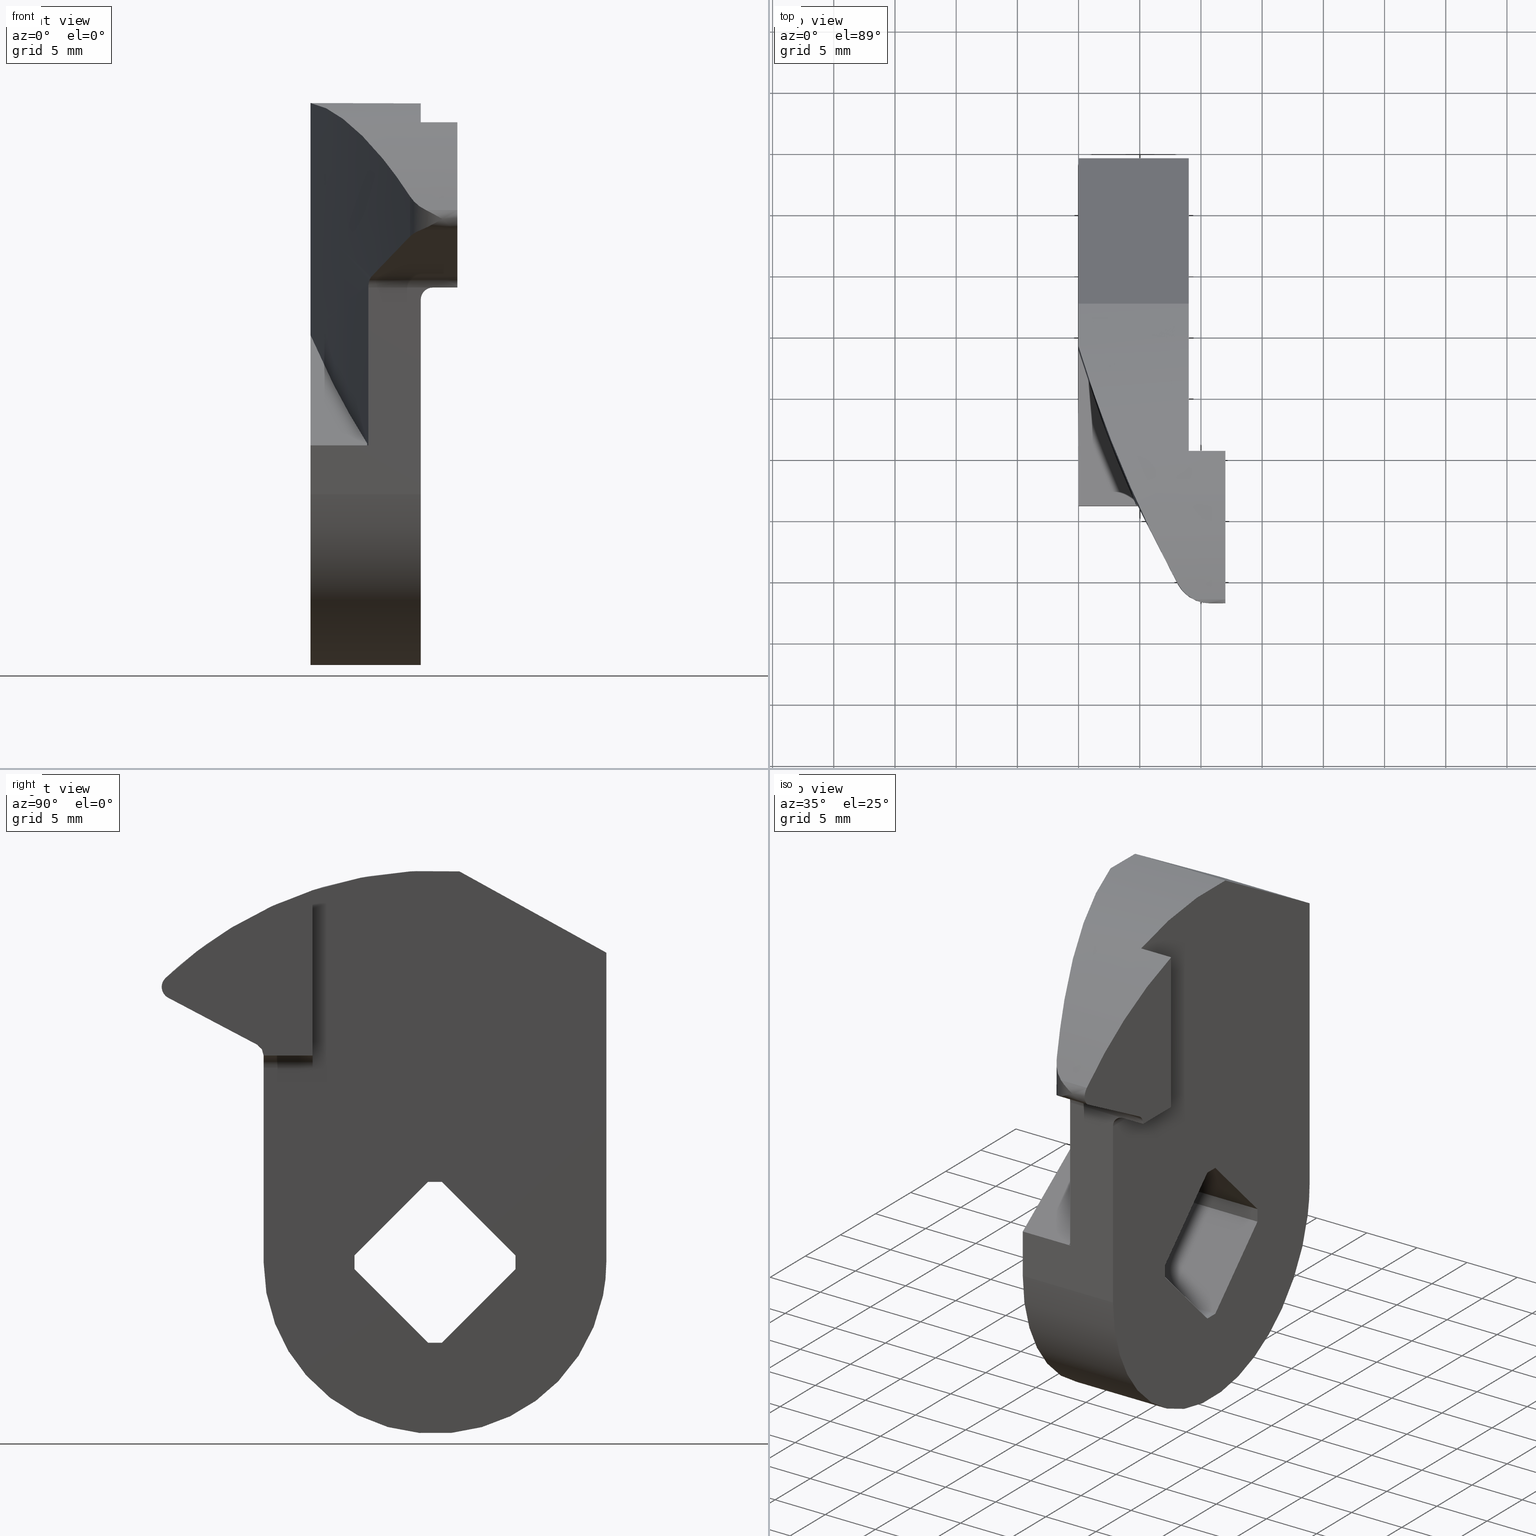
[diagram: canonical four-view strip — front | top / right | iso, engineering-drawing reading convention]
A machine part, canonical four-view strip (front | top / right | iso — engineering-drawing reading convention). The complete STEP part file that produces these views, byte-faithful:
ISO-10303-21;
HEADER;
/****************************************************************
 * Generated by software with PDE/Lib inside                    *
 * PDElib Version 4.4.1-0003, patched  Thursday August 19 11:58 *
 * International Technegroup Inc. (www.iti-oh.com)              *
 ****************************************************************/
FILE_DESCRIPTION((''),'2;1');
FILE_NAME('','2005-10-12T12:17:41',(''),(''),'','CADfix','');
FILE_SCHEMA(('AUTOMOTIVE_DESIGN'));
ENDSEC;
DATA;
#5=APPLICATION_CONTEXT('automotive design');
#6=APPLICATION_PROTOCOL_DEFINITION('Draft International Standard','automotive_design',1998,#5);
#7=PRODUCT_CONTEXT('None',#5,'mechanical');
#8=PRODUCT('cam','','None',(#7));
#9=PRODUCT_RELATED_PRODUCT_CATEGORY('part','description',(#8));
#10=PRODUCT_DEFINITION_FORMATION('None','None',#8);
#11=PRODUCT_DEFINITION_CONTEXT('part definition',#5,'design');
#12=PRODUCT_DEFINITION('None','None',#10,#11);
#18=(NAMED_UNIT(*)PLANE_ANGLE_UNIT()SI_UNIT($,.RADIAN.));
#19=DIMENSIONAL_EXPONENTS(0.0,0.0,0.0,0.0,0.0,0.0,0.0);
#20=PLANE_ANGLE_MEASURE_WITH_UNIT(PLANE_ANGLE_MEASURE(0.017453292500000),#18);
#24=(CONVERSION_BASED_UNIT('DEGREE',#20)NAMED_UNIT(#19)PLANE_ANGLE_UNIT());
#28=(NAMED_UNIT(*)SI_UNIT($,.STERADIAN.)SOLID_ANGLE_UNIT());
#32=(LENGTH_UNIT()NAMED_UNIT(*)SI_UNIT(.MILLI.,.METRE.));
#34=UNCERTAINTY_MEASURE_WITH_UNIT(LENGTH_MEASURE(0.001000000000000),#32,'DISTANCE_ACCURACY_VALUE','');
#36=(GEOMETRIC_REPRESENTATION_CONTEXT(3)GLOBAL_UNCERTAINTY_ASSIGNED_CONTEXT((#34))GLOBAL_UNIT_ASSIGNED_CONTEXT((#24,#28,#32))REPRESENTATION_CONTEXT('None','None'));
#37=AXIS2_PLACEMENT_3D('',#38,#39,#40);
#38=CARTESIAN_POINT('',(0.0,0.0,0.0));
#39=DIRECTION('',(0.0,0.0,1.0));
#40=DIRECTION('',(1.0,0.0,0.0));
#41=ADVANCED_BREP_SHAPE_REPRESENTATION('',(#37,#1158),#36);
#42=PRODUCT_DEFINITION_SHAPE('','',#12);
#43=SHAPE_DEFINITION_REPRESENTATION(#42,#41);
#44=CARTESIAN_POINT('',(4.622499999999890,-13.774978529302700,4.162015519735226));
#45=CARTESIAN_POINT('',(4.622499999999890,-14.010705107951940,4.162015519735226));
#46=CARTESIAN_POINT('',(4.622499999999890,-13.774978529302700,3.992292319375714));
#47=CARTESIAN_POINT('',(4.622499999999890,-14.010705107951940,3.992292319375714));
#48=B_SPLINE_SURFACE_WITH_KNOTS('',1,1,((#44,#46),(#45,#47)),.UNSPECIFIED.,.F.,.F.,.U.,(2,2),(2,2),(0.0,0.235726578649238),(0.0,0.169723200359512),.UNSPECIFIED.);
#49=CARTESIAN_POINT('',(4.622499999999881,-13.785683815443781,4.154307652875415));
#50=VERTEX_POINT('',#49);
#51=CARTESIAN_POINT('',(4.622499999999890,-13.785683815443800,3.999999999987125));
#52=VERTEX_POINT('',#51);
#53=CARTESIAN_POINT('',(4.622499999999881,-13.785683815443781,4.154307652875415));
#54=CARTESIAN_POINT('',(4.622499999999890,-13.785683815443800,3.999999999987125));
#55=QUASI_UNIFORM_CURVE('',1,(#53,#54),.UNSPECIFIED.,.F.,.U.);
#56=EDGE_CURVE('',#50,#52,#55,.T.);
#57=ORIENTED_EDGE('',*,*,#56,.F.);
#58=CARTESIAN_POINT('',(4.622499999999860,-14.000000000011500,3.999999999987105));
#59=VERTEX_POINT('',#58);
#60=CARTESIAN_POINT('',(4.622499999999860,-14.000000000011500,3.999999999987105));
#61=CARTESIAN_POINT('',(4.622499999999881,-13.785683815443781,4.154307652875415));
#62=QUASI_UNIFORM_CURVE('',1,(#60,#61),.UNSPECIFIED.,.F.,.U.);
#63=EDGE_CURVE('',#59,#50,#62,.T.);
#64=ORIENTED_EDGE('',*,*,#63,.F.);
#65=CARTESIAN_POINT('',(4.622499999999860,-14.000000000011500,3.999999999987105));
#66=CARTESIAN_POINT('',(4.622499999999890,-13.785683815443800,3.999999999987125));
#67=QUASI_UNIFORM_CURVE('',1,(#65,#66),.UNSPECIFIED.,.F.,.U.);
#68=EDGE_CURVE('',#59,#52,#67,.T.);
#69=ORIENTED_EDGE('',*,*,#68,.T.);
#70=EDGE_LOOP('',(#57,#64,#69));
#71=FACE_OUTER_BOUND('',#70,.T.);
#72=ADVANCED_FACE('',(#71),#48,.T.);
#73=CARTESIAN_POINT('',(-0.230893849525758,-0.875625024203385,13.449549982543330));
#74=CARTESIAN_POINT('',(-0.230893849525758,-14.624375311061890,3.550449776032041));
#75=CARTESIAN_POINT('',(4.853393642883898,-0.875625024203385,13.449549982543330));
#76=CARTESIAN_POINT('',(4.853393642883898,-14.624375311061890,3.550449776032041));
#77=B_SPLINE_SURFACE_WITH_KNOTS('',1,1,((#73,#75),(#74,#76)),.UNSPECIFIED.,.F.,.F.,.U.,(2,2),(2,2),(0.0,16.941674042105280),(0.0,5.084287492409656),.UNSPECIFIED.);
#78=CARTESIAN_POINT('',(1.110223E-013,-1.499999999977640,12.999999999987059));
#79=VERTEX_POINT('',#78);
#80=CARTESIAN_POINT('',(1.110223E-013,-1.499999999977640,12.999999999987059));
#81=CARTESIAN_POINT('',(1.907208135176419,-7.794863036383173,8.467698613787475));
#82=CARTESIAN_POINT('',(4.622499999999881,-13.785683815443781,4.154307652875415));
#90=(BOUNDED_CURVE()B_SPLINE_CURVE(2,(#80,#81,#82),.UNSPECIFIED.,.F.,.U.)CURVE()GEOMETRIC_REPRESENTATION_ITEM()QUASI_UNIFORM_CURVE()RATIONAL_B_SPLINE_CURVE((1.0,0.997843856359115,1.0))REPRESENTATION_ITEM(''));
#91=EDGE_CURVE('',#79,#50,#90,.T.);
#92=ORIENTED_EDGE('',*,*,#91,.F.);
#93=CARTESIAN_POINT('',(1.110223E-013,-14.000000000011500,3.999999999987105));
#94=VERTEX_POINT('',#93);
#95=CARTESIAN_POINT('',(1.110223E-013,-14.000000000011500,3.999999999987105));
#96=CARTESIAN_POINT('',(1.110223E-013,-1.499999999977640,12.999999999987059));
#97=QUASI_UNIFORM_CURVE('',1,(#95,#96),.UNSPECIFIED.,.F.,.U.);
#98=EDGE_CURVE('',#94,#79,#97,.T.);
#99=ORIENTED_EDGE('',*,*,#98,.F.);
#100=CARTESIAN_POINT('',(4.622499999999860,-14.000000000011500,3.999999999987105));
#101=CARTESIAN_POINT('',(1.110223E-013,-14.000000000011500,3.999999999987105));
#102=QUASI_UNIFORM_CURVE('',1,(#100,#101),.UNSPECIFIED.,.F.,.U.);
#103=EDGE_CURVE('',#59,#94,#102,.T.);
#104=ORIENTED_EDGE('',*,*,#103,.F.);
#105=ORIENTED_EDGE('',*,*,#63,.T.);
#106=EDGE_LOOP('',(#92,#99,#104,#105));
#107=FACE_OUTER_BOUND('',#106,.T.);
#108=ADVANCED_FACE('',(#107),#77,.T.);
#109=CARTESIAN_POINT('',(4.617632755031038,-13.774978529302709,3.999999999987105));
#110=CARTESIAN_POINT('',(4.724808326956929,-13.774978529302709,3.999999999987105));
#111=CARTESIAN_POINT('',(4.617632755031038,-14.010705107951930,3.999999999987105));
#112=CARTESIAN_POINT('',(4.724808326956930,-14.010705107951930,3.999999999987105));
#113=B_SPLINE_SURFACE_WITH_KNOTS('',1,1,((#109,#111),(#110,#112)),.UNSPECIFIED.,.F.,.F.,.U.,(2,2),(2,2),(0.0,0.107175571925892),(0.0,0.235726578649219),.UNSPECIFIED.);
#114=CARTESIAN_POINT('',(4.719941373838021,-14.000000000011500,3.999999999987105));
#115=VERTEX_POINT('',#114);
#116=CARTESIAN_POINT('',(4.719941373838021,-14.000000000011500,3.999999999987105));
#117=CARTESIAN_POINT('',(4.622499999999860,-14.000000000011500,3.999999999987105));
#118=QUASI_UNIFORM_CURVE('',1,(#116,#117),.UNSPECIFIED.,.F.,.U.);
#119=EDGE_CURVE('',#115,#59,#118,.T.);
#120=ORIENTED_EDGE('',*,*,#119,.F.);
#121=CARTESIAN_POINT('',(4.622499999999905,-13.785683815443781,3.999999999987125));
#122=CARTESIAN_POINT('',(4.671094546861820,-13.892899258785553,3.999999999987125));
#123=CARTESIAN_POINT('',(4.719941373838021,-14.000000000011500,3.999999999987125));
#131=(BOUNDED_CURVE()B_SPLINE_CURVE(2,(#121,#122,#123),.UNSPECIFIED.,.F.,.U.)CURVE()GEOMETRIC_REPRESENTATION_ITEM()QUASI_UNIFORM_CURVE()RATIONAL_B_SPLINE_CURVE((1.0,0.999999307171656,1.0))REPRESENTATION_ITEM(''));
#132=EDGE_CURVE('',#52,#115,#131,.T.);
#133=ORIENTED_EDGE('',*,*,#132,.F.);
#134=ORIENTED_EDGE('',*,*,#68,.F.);
#135=EDGE_LOOP('',(#120,#133,#134));
#136=FACE_OUTER_BOUND('',#135,.T.);
#137=ADVANCED_FACE('',(#136),#113,.F.);
#138=CARTESIAN_POINT('',(8.065863621939712,-20.660164575086931,24.419854456271349));
#139=CARTESIAN_POINT('',(8.065863621939712,-20.660164575086931,20.991625902502630));
#140=CARTESIAN_POINT('',(8.939835204538774,-22.423594485560606,24.419854456271352));
#141=CARTESIAN_POINT('',(8.939835204538774,-22.423594485560606,20.991625902502626));
#142=CARTESIAN_POINT('',(10.905444673535529,-22.324142025891412,24.419854456271356));
#143=CARTESIAN_POINT('',(10.905444673535529,-22.324142025891412,20.991625902502623));
#151=(BOUNDED_SURFACE()B_SPLINE_SURFACE(1,2,((#138,#140,#142),(#139,#141,#143)),.UNSPECIFIED.,.F.,.F.,.U.)B_SPLINE_SURFACE_WITH_KNOTS((2,2),(3,3),(0.0,3.428228553768729),(0.0,3.584941186880555),.UNSPECIFIED.)GEOMETRIC_REPRESENTATION_ITEM()RATIONAL_B_SPLINE_SURFACE(((1.0,0.835110718631527,0.997568271212473),(1.0,0.835110718631527,0.997568271212473)))REPRESENTATION_ITEM('')SURFACE());
#152=CARTESIAN_POINT('',(8.126531298087430,-20.776144938068750,21.075241233082352));
#153=VERTEX_POINT('',#152);
#154=CARTESIAN_POINT('',(9.046326933998540,-21.794625300079549,21.612613591359199));
#155=VERTEX_POINT('',#154);
#156=CARTESIAN_POINT('',(8.126531298087430,-20.776144938068750,21.075241233082352));
#157=CARTESIAN_POINT('',(8.466782036165698,-21.393439104232293,21.400939041498464));
#158=CARTESIAN_POINT('',(9.046326933998540,-21.794625300079549,21.612613591359199));
#166=(BOUNDED_CURVE()B_SPLINE_CURVE(2,(#156,#157,#158),.UNSPECIFIED.,.F.,.U.)CURVE()GEOMETRIC_REPRESENTATION_ITEM()QUASI_UNIFORM_CURVE()RATIONAL_B_SPLINE_CURVE((1.0,0.973491336210341,1.0))REPRESENTATION_ITEM(''));
#167=EDGE_CURVE('',#153,#155,#166,.T.);
#168=ORIENTED_EDGE('',*,*,#167,.T.);
#169=CARTESIAN_POINT('',(10.753849852232021,-22.327974639027701,22.497055313873251));
#170=VERTEX_POINT('',#169);
#171=CARTESIAN_POINT('',(10.753849852232021,-22.327974639027701,22.497055313873251));
#172=CARTESIAN_POINT('',(10.735646924947879,-22.327974639027548,22.486545869656890));
#173=CARTESIAN_POINT('',(10.717190770009459,-22.327806768448738,22.475890180250939));
#174=CARTESIAN_POINT('',(10.680498543211550,-22.327133900967819,22.454711256644661));
#175=CARTESIAN_POINT('',(10.625519954108761,-22.325620510245940,22.422985390739690));
#176=CARTESIAN_POINT('',(10.570709524856380,-22.322602697567859,22.391404525144608));
#177=CARTESIAN_POINT('',(10.461284738208120,-22.314570696117400,22.328483441803812));
#178=CARTESIAN_POINT('',(10.388596189732359,-22.306558223106990,22.286855939556251));
#179=CARTESIAN_POINT('',(10.171100136944609,-22.274478396150862,22.163335266992529));
#180=CARTESIAN_POINT('',(10.026871317857291,-22.242450194177302,22.082763634622459));
#181=CARTESIAN_POINT('',(9.810773415483267,-22.176882012419590,21.966647870943909));
#182=CARTESIAN_POINT('',(9.738667476954424,-22.152018565385809,21.928691045264891));
#183=CARTESIAN_POINT('',(9.596451389422716,-22.096773683985990,21.855935697212811));
#184=CARTESIAN_POINT('',(9.526094964445971,-22.066329481866880,21.820999500013929));
#185=CARTESIAN_POINT('',(9.317107647506864,-21.966089321225709,21.721370453916091));
#186=CARTESIAN_POINT('',(9.180571443603444,-21.887555190970080,21.661645420037420));
#187=CARTESIAN_POINT('',(9.046326933998548,-21.794625300079549,21.612613591359199));
#188=B_SPLINE_CURVE_WITH_KNOTS('',3,(#171,#172,#173,#174,#175,#176,#177,#178,#179,#180,#181,#182,#183,#184,#185,#186,#187),.UNSPECIFIED.,.F.,.U.,(4,2,1,2,2,2,2,2,4),(0.0,0.031249999999998,0.062499999999996,0.124999999999994,0.249999999999995,0.499999999999996,0.624999999999997,0.749999999999998,1.0),.UNSPECIFIED.);
#189=EDGE_CURVE('',#170,#155,#188,.T.);
#190=ORIENTED_EDGE('',*,*,#189,.F.);
#191=CARTESIAN_POINT('',(9.421686049242210,-22.015973820939799,23.222766775625249));
#192=VERTEX_POINT('',#191);
#193=CARTESIAN_POINT('',(9.421686049242162,-22.015973820939799,23.222766775625200));
#194=CARTESIAN_POINT('',(9.529792177122918,-22.069550872381189,23.171973906139300));
#195=CARTESIAN_POINT('',(9.638410008099561,-22.115318087849200,23.117435789948392));
#196=CARTESIAN_POINT('',(9.857248828639831,-22.193213922588260,23.003160662273320));
#197=CARTESIAN_POINT('',(9.967464153296401,-22.225324472964491,22.943402036650419));
#198=CARTESIAN_POINT('',(10.189978883289371,-22.276718110082250,22.820084643082222));
#199=CARTESIAN_POINT('',(10.302659726130649,-22.296018574199230,22.756293340787110));
#200=CARTESIAN_POINT('',(10.471658651468999,-22.315211231419720,22.659666089690699));
#201=CARTESIAN_POINT('',(10.528020904374040,-22.319996576865389,22.627281429205290));
#202=CARTESIAN_POINT('',(10.612658739062629,-22.324783536350640,22.578533002826440));
#203=CARTESIAN_POINT('',(10.640887081836530,-22.325980312012220,22.562254883296120));
#204=CARTESIAN_POINT('',(10.697383665460061,-22.327576307998811,22.529656089194852));
#205=CARTESIAN_POINT('',(10.725839141957421,-22.327974639027548,22.513227273092689));
#206=CARTESIAN_POINT('',(10.753849852232021,-22.327974639027701,22.497055313873251));
#207=B_SPLINE_CURVE_WITH_KNOTS('',3,(#193,#194,#195,#196,#197,#198,#199,#200,#201,#202,#203,#204,#205,#206),.UNSPECIFIED.,.F.,.U.,(4,2,2,2,2,2,4),(0.0,0.250000000000003,0.500000000000005,0.750000000000008,0.875000000000005,0.937500000000003,1.0),.UNSPECIFIED.);
#208=EDGE_CURVE('',#192,#170,#207,.T.);
#209=ORIENTED_EDGE('',*,*,#208,.F.);
#210=CARTESIAN_POINT('',(8.126531298087482,-20.776144938068700,24.338278523998451));
#211=VERTEX_POINT('',#210);
#212=CARTESIAN_POINT('',(8.126531298087482,-20.776144938068700,24.338278523998451));
#213=CARTESIAN_POINT('',(8.196000331214723,-20.902177960423540,24.230691607493910));
#214=CARTESIAN_POINT('',(8.274331722824085,-21.022967835150482,24.125889087116171));
#215=CARTESIAN_POINT('',(8.449300000535814,-21.254126779957488,23.922495598559571));
#216=CARTESIAN_POINT('',(8.545919941892715,-21.364502692025251,23.823895725429029));
#217=CARTESIAN_POINT('',(8.706167596886898,-21.521737987937929,23.681634016289941));
#218=CARTESIAN_POINT('',(8.762149779421121,-21.572755296814599,23.635159044341371));
#219=CARTESIAN_POINT('',(8.850334450253122,-21.647049122480759,23.567061607789132));
#220=CARTESIAN_POINT('',(8.880432569858176,-21.671441090468289,23.544632240596648));
#221=CARTESIAN_POINT('',(8.942114592572416,-21.719447547473450,23.500354561476989));
#222=CARTESIAN_POINT('',(8.973749924635143,-21.743096172937751,23.478474381308828));
#223=CARTESIAN_POINT('',(9.134650834289884,-21.858444744257099,23.371440707022298));
#224=CARTESIAN_POINT('',(9.272665985582227,-21.942119953698288,23.292782757074558));
#225=CARTESIAN_POINT('',(9.421686049242162,-22.015973820939848,23.222766775625200));
#226=B_SPLINE_CURVE_WITH_KNOTS('',3,(#212,#213,#214,#215,#216,#217,#218,#219,#220,#221,#222,#223,#224,#225),.UNSPECIFIED.,.F.,.U.,(4,2,2,2,2,2,4),(0.0,0.250000000000004,0.500000000000008,0.625000000000009,0.687500000000008,0.750000000000006,1.0),.UNSPECIFIED.);
#227=EDGE_CURVE('',#211,#192,#226,.T.);
#228=ORIENTED_EDGE('',*,*,#227,.F.);
#229=CARTESIAN_POINT('',(8.126531298087482,-20.776144938068700,24.338278523998451));
#230=CARTESIAN_POINT('',(8.126531298087430,-20.776144938068750,21.075241233082352));
#231=QUASI_UNIFORM_CURVE('',1,(#229,#230),.UNSPECIFIED.,.F.,.U.);
#232=EDGE_CURVE('',#211,#153,#231,.T.);
#233=ORIENTED_EDGE('',*,*,#232,.T.);
#234=EDGE_LOOP('',(#168,#190,#209,#228,#233));
#235=FACE_OUTER_BOUND('',#234,.T.);
#236=ADVANCED_FACE('',(#235),#151,.T.);
#237=CARTESIAN_POINT('',(-0.297486863418824,-0.499332793513886,32.663945027257896));
#238=CARTESIAN_POINT('',(-0.297486863418824,-0.499332793513886,3.283402272130937));
#239=CARTESIAN_POINT('',(2.942891587086385,-11.611126053916793,32.663945027257881));
#240=CARTESIAN_POINT('',(2.942891587086385,-11.611126053916793,3.283402272130935));
#241=CARTESIAN_POINT('',(8.635885222181500,-21.688914771448076,32.663945027257888));
#242=CARTESIAN_POINT('',(8.635885222181500,-21.688914771448076,3.283402272130935));
#250=(BOUNDED_SURFACE()B_SPLINE_SURFACE(1,2,((#237,#239,#241),(#238,#240,#242)),.UNSPECIFIED.,.F.,.F.,.U.)B_SPLINE_SURFACE_WITH_KNOTS((2,2),(3,3),(0.0,29.380542755126950),(2.175574116957188,25.248571343171601),.UNSPECIFIED.)GEOMETRIC_REPRESENTATION_ITEM()RATIONAL_B_SPLINE_SURFACE(((0.998509826557142,0.991231844477814,0.997189848046748),(0.998509826557142,0.991231844477814,0.997189848046748)))REPRESENTATION_ITEM('')SURFACE());
#251=ORIENTED_EDGE('',*,*,#91,.T.);
#252=ORIENTED_EDGE('',*,*,#56,.T.);
#253=ORIENTED_EDGE('',*,*,#132,.T.);
#254=CARTESIAN_POINT('',(4.719941375153640,-14.000000000048701,16.896964971924351));
#255=VERTEX_POINT('',#254);
#256=CARTESIAN_POINT('',(4.719941373838021,-14.000000000011500,3.999999999987105));
#257=CARTESIAN_POINT('',(4.719941375153640,-14.000000000048701,16.896964971924351));
#258=QUASI_UNIFORM_CURVE('',1,(#256,#257),.UNSPECIFIED.,.F.,.U.);
#259=EDGE_CURVE('',#115,#255,#258,.T.);
#260=ORIENTED_EDGE('',*,*,#259,.T.);
#261=CARTESIAN_POINT('',(4.965086447786369,-14.533349339004561,17.781406694451650));
#262=VERTEX_POINT('',#261);
#263=CARTESIAN_POINT('',(4.719941375153640,-14.000000000048701,16.896964971924351));
#264=CARTESIAN_POINT('',(4.719941373854981,-14.000000000048701,16.991113386796471));
#265=CARTESIAN_POINT('',(4.725883869767665,-14.013036442286889,17.082769771386829));
#266=CARTESIAN_POINT('',(4.740460268434978,-14.044960550864880,17.194350968557501));
#267=CARTESIAN_POINT('',(4.743753661463514,-14.052171704519701,17.216583799076279));
#268=CARTESIAN_POINT('',(4.750966073112209,-14.067957902721471,17.260052015600142));
#269=CARTESIAN_POINT('',(4.754892114575789,-14.076548340193270,17.281359953443172));
#270=CARTESIAN_POINT('',(4.767599234455862,-14.104340287759390,17.344048363930931));
#271=CARTESIAN_POINT('',(4.777305067853713,-14.125553369302519,17.384198991997259));
#272=CARTESIAN_POINT('',(4.799135261211005,-14.173210408387479,17.461298978927680));
#273=CARTESIAN_POINT('',(4.811344762933553,-14.199839510567120,17.498418890156842));
#274=CARTESIAN_POINT('',(4.837485541519539,-14.256776273160529,17.567503648269771));
#275=CARTESIAN_POINT('',(4.851469181057509,-14.287198594579131,17.599713466732570));
#276=CARTESIAN_POINT('',(4.881192313786832,-14.351767066664721,17.659680747735369));
#277=CARTESIAN_POINT('',(4.896994752611633,-14.386049589834620,17.687530403730971));
#278=CARTESIAN_POINT('',(4.930085220607472,-14.457720155500970,17.738309953704661));
#279=CARTESIAN_POINT('',(4.947271707073641,-14.494888612308550,17.761113979759671));
#280=CARTESIAN_POINT('',(4.965086447786359,-14.533349339004561,17.781406694451650));
#281=B_SPLINE_CURVE_WITH_KNOTS('',3,(#263,#264,#265,#266,#267,#268,#269,#270,#271,#272,#273,#274,#275,#276,#277,#278,#279,#280),.UNSPECIFIED.,.F.,.U.,(4,2,2,2,2,2,2,2,4),(0.0,0.249999999999982,0.312499999999985,0.374999999999987,0.499999999999989,0.624999999999992,0.749999999999995,0.874999999999997,1.0),.UNSPECIFIED.);
#282=EDGE_CURVE('',#255,#262,#281,.T.);
#283=ORIENTED_EDGE('',*,*,#282,.T.);
#284=CARTESIAN_POINT('',(4.965086447786369,-14.533349339004561,17.781406694451650));
#285=CARTESIAN_POINT('',(6.436529577793309,-17.710087804331941,19.457522900924939));
#286=CARTESIAN_POINT('',(8.126531298087421,-20.776144938068750,21.075241233082352));
#294=(BOUNDED_CURVE()B_SPLINE_CURVE(2,(#284,#285,#286),.UNSPECIFIED.,.F.,.U.)CURVE()GEOMETRIC_REPRESENTATION_ITEM()QUASI_UNIFORM_CURVE()RATIONAL_B_SPLINE_CURVE((1.0,0.999387722177533,1.0))REPRESENTATION_ITEM(''));
#295=EDGE_CURVE('',#262,#153,#294,.T.);
#296=ORIENTED_EDGE('',*,*,#295,.T.);
#297=ORIENTED_EDGE('',*,*,#232,.F.);
#298=CARTESIAN_POINT('',(1.110223E-013,-1.499999999988892,31.964824416836649));
#299=VERTEX_POINT('',#298);
#300=CARTESIAN_POINT('',(1.110223E-013,-1.499999999988892,31.964824416836649));
#301=CARTESIAN_POINT('',(0.275701778675477,-2.409971441301873,31.922122566071948));
#302=CARTESIAN_POINT('',(0.561779388931470,-3.307450408910026,31.841151055424270));
#303=CARTESIAN_POINT('',(1.153612222872029,-5.078805464828399,31.607022380986489));
#304=CARTESIAN_POINT('',(1.459368902548166,-5.952678542879896,31.453854301342339));
#305=CARTESIAN_POINT('',(2.089525868312321,-7.677767274345413,31.077825244471899));
#306=CARTESIAN_POINT('',(2.413927675960965,-8.528981416029422,30.854960067697210));
#307=CARTESIAN_POINT('',(3.080333867677292,-10.209337038130281,30.340427189082870));
#308=CARTESIAN_POINT('',(3.422340052468927,-11.038478205994251,30.048761030116779));
#309=CARTESIAN_POINT('',(3.860163769283055,-12.061265864561360,29.640755190749910));
#310=CARTESIAN_POINT('',(3.948273818637639,-12.265208772851871,29.556950027516791));
#311=CARTESIAN_POINT('',(4.125382088354910,-12.671443599943959,29.385083941758801));
#312=CARTESIAN_POINT('',(4.391750373759363,-13.276886215981641,29.121510824235671));
#313=CARTESIAN_POINT('',(4.660102018353299,-13.870783310620460,28.840805836898060));
#314=CARTESIAN_POINT('',(5.199081809736314,-15.043588207812901,28.256915927316012));
#315=CARTESIAN_POINT('',(5.561443302614374,-15.805498198481910,27.837729550653929));
#316=CARTESIAN_POINT('',(6.290166723900183,-17.290893576327349,26.940266501460439));
#317=CARTESIAN_POINT('',(6.656532385757526,-18.014377551681338,26.461990517984500));
#318=CARTESIAN_POINT('',(7.390942119511431,-19.423600728315321,25.445598352081198));
#319=CARTESIAN_POINT('',(7.758991263814303,-20.109341626282280,24.907488964958421));
#320=CARTESIAN_POINT('',(8.126531298087482,-20.776144938068700,24.338278523998451));
#321=B_SPLINE_CURVE_WITH_KNOTS('',3,(#300,#301,#302,#303,#304,#305,#306,#307,#308,#309,#310,#311,#312,#313,#314,#315,#316,#317,#318,#319,#320),.UNSPECIFIED.,.F.,.U.,(4,2,2,2,2,2,1,2,2,2,4),(0.0,0.125000000000000,0.250000000000000,0.375000000000000,0.500000000000000,0.531249999999999,0.562499999999999,0.624999999999999,0.750000000000000,0.875000000000000,1.0),.UNSPECIFIED.);
#322=EDGE_CURVE('',#299,#211,#321,.T.);
#323=ORIENTED_EDGE('',*,*,#322,.F.);
#324=CARTESIAN_POINT('',(1.110223E-013,-1.499999999988892,31.964824416836649));
#325=CARTESIAN_POINT('',(1.110223E-013,-1.499999999977640,12.999999999987059));
#326=QUASI_UNIFORM_CURVE('',1,(#324,#325),.UNSPECIFIED.,.F.,.U.);
#327=EDGE_CURVE('',#299,#79,#326,.T.);
#328=ORIENTED_EDGE('',*,*,#327,.T.);
#329=EDGE_LOOP('',(#251,#252,#253,#260,#283,#296,#297,#323,#328));
#330=FACE_OUTER_BOUND('',#329,.T.);
#331=ADVANCED_FACE('',(#330),#250,.T.);
#332=CARTESIAN_POINT('',(9.225000000000119,-6.570586336237593,0.622410795228325));
#333=CARTESIAN_POINT('',(-0.230624999999890,-6.570586336237593,0.622410795228325));
#334=CARTESIAN_POINT('',(9.225000000000119,-6.629545671408049,-0.000003541120657));
#335=CARTESIAN_POINT('',(-0.230624999999890,-6.629545671408049,-0.000003541120657));
#336=CARTESIAN_POINT('',(9.225000000000119,-6.570585671326878,-0.622417814484398));
#337=CARTESIAN_POINT('',(-0.230624999999890,-6.570585671326878,-0.622417814484398));
#345=(BOUNDED_SURFACE()B_SPLINE_SURFACE(1,2,((#332,#334,#336),(#333,#335,#337)),.UNSPECIFIED.,.F.,.F.,.U.)B_SPLINE_SURFACE_WITH_KNOTS((2,2),(3,3),(0.0,9.455625000000008),(0.134187688548118,0.855204338710755),.UNSPECIFIED.)GEOMETRIC_REPRESENTATION_ITEM()RATIONAL_B_SPLINE_SURFACE(((0.998012104842203,0.993499153424947,0.997881236459380),(0.998012104842203,0.993499153424947,0.997881236459380)))REPRESENTATION_ITEM('')SURFACE());
#346=CARTESIAN_POINT('',(1.110223E-013,-6.575677091096340,0.566101398693485));
#347=VERTEX_POINT('',#346);
#348=CARTESIAN_POINT('',(1.110223E-013,-6.575677091094541,-0.566101398766257));
#349=VERTEX_POINT('',#348);
#350=CARTESIAN_POINT('',(1.110223E-013,-6.575677091096337,0.566101398693484));
#351=CARTESIAN_POINT('',(1.110223E-013,-6.624412877418935,-3.646480E-011));
#352=CARTESIAN_POINT('',(1.110223E-013,-6.575677091094544,-0.566101398766261));
#360=(BOUNDED_CURVE()B_SPLINE_CURVE(2,(#350,#351,#352),.UNSPECIFIED.,.F.,.U.)CURVE()GEOMETRIC_REPRESENTATION_ITEM()QUASI_UNIFORM_CURVE()RATIONAL_B_SPLINE_CURVE((1.0,0.996314710772021,1.0))REPRESENTATION_ITEM(''));
#361=EDGE_CURVE('',#347,#349,#360,.T.);
#362=ORIENTED_EDGE('',*,*,#361,.F.);
#363=CARTESIAN_POINT('',(9.000000000000119,-6.575677091096340,0.566101398693485));
#364=VERTEX_POINT('',#363);
#365=CARTESIAN_POINT('',(9.000000000000119,-6.575677091096340,0.566101398693485));
#366=CARTESIAN_POINT('',(1.110223E-013,-6.575677091096340,0.566101398693485));
#367=QUASI_UNIFORM_CURVE('',1,(#365,#366),.UNSPECIFIED.,.F.,.U.);
#368=EDGE_CURVE('',#364,#347,#367,.T.);
#369=ORIENTED_EDGE('',*,*,#368,.F.);
#370=CARTESIAN_POINT('',(9.000000000000119,-6.575677091094510,-0.566101398766254));
#371=VERTEX_POINT('',#370);
#372=CARTESIAN_POINT('',(9.000000000000119,-6.575677091096337,0.566101398693484));
#373=CARTESIAN_POINT('',(9.000000000000119,-6.624412877418935,-3.646480E-011));
#374=CARTESIAN_POINT('',(9.000000000000119,-6.575677091094510,-0.566101398766254));
#382=(BOUNDED_CURVE()B_SPLINE_CURVE(2,(#372,#373,#374),.UNSPECIFIED.,.F.,.U.)CURVE()GEOMETRIC_REPRESENTATION_ITEM()QUASI_UNIFORM_CURVE()RATIONAL_B_SPLINE_CURVE((1.0,0.996314710772021,1.0))REPRESENTATION_ITEM(''));
#383=EDGE_CURVE('',#364,#371,#382,.T.);
#384=ORIENTED_EDGE('',*,*,#383,.T.);
#385=CARTESIAN_POINT('',(9.000000000000119,-6.575677091094510,-0.566101398766254));
#386=CARTESIAN_POINT('',(1.110223E-013,-6.575677091094541,-0.566101398766257));
#387=QUASI_UNIFORM_CURVE('',1,(#385,#386),.UNSPECIFIED.,.F.,.U.);
#388=EDGE_CURVE('',#371,#349,#387,.T.);
#389=ORIENTED_EDGE('',*,*,#388,.T.);
#390=EDGE_LOOP('',(#362,#369,#384,#389));
#391=FACE_OUTER_BOUND('',#390,.T.);
#392=ADVANCED_FACE('',(#391),#345,.F.);
#393=CARTESIAN_POINT('',(-0.449549982556143,-6.875855307387465,-0.265923182474243));
#394=CARTESIAN_POINT('',(-0.449549982556143,-0.265923397534816,-6.875855092306130));
#395=CARTESIAN_POINT('',(9.449550223955185,-6.875855307387465,-0.265923182474243));
#396=CARTESIAN_POINT('',(9.449550223955185,-0.265923397534816,-6.875855092306130));
#397=B_SPLINE_SURFACE_WITH_KNOTS('',1,1,((#393,#395),(#394,#396)),.UNSPECIFIED.,.F.,.F.,.U.,(2,2),(2,2),(0.0,9.347855353261629),(0.0,9.899100206511328),.UNSPECIFIED.);
#398=CARTESIAN_POINT('',(1.110223E-013,-0.566101399067535,-6.575677091092260));
#399=VERTEX_POINT('',#398);
#400=CARTESIAN_POINT('',(1.110223E-013,-0.566101399067535,-6.575677091092260));
#401=CARTESIAN_POINT('',(1.110223E-013,-6.575677091094541,-0.566101398766257));
#402=QUASI_UNIFORM_CURVE('',1,(#400,#401),.UNSPECIFIED.,.F.,.U.);
#403=EDGE_CURVE('',#399,#349,#402,.T.);
#404=ORIENTED_EDGE('',*,*,#403,.T.);
#405=ORIENTED_EDGE('',*,*,#388,.F.);
#406=CARTESIAN_POINT('',(9.000000000000119,-0.566101399067535,-6.575677091092260));
#407=VERTEX_POINT('',#406);
#408=CARTESIAN_POINT('',(9.000000000000119,-0.566101399067535,-6.575677091092260));
#409=CARTESIAN_POINT('',(9.000000000000119,-6.575677091094510,-0.566101398766254));
#410=QUASI_UNIFORM_CURVE('',1,(#408,#409),.UNSPECIFIED.,.F.,.U.);
#411=EDGE_CURVE('',#407,#371,#410,.T.);
#412=ORIENTED_EDGE('',*,*,#411,.F.);
#413=CARTESIAN_POINT('',(9.000000000000119,-0.566101399067535,-6.575677091092260));
#414=CARTESIAN_POINT('',(1.110223E-013,-0.566101399067535,-6.575677091092260));
#415=QUASI_UNIFORM_CURVE('',1,(#413,#414),.UNSPECIFIED.,.F.,.U.);
#416=EDGE_CURVE('',#407,#399,#415,.T.);
#417=ORIENTED_EDGE('',*,*,#416,.T.);
#418=EDGE_LOOP('',(#404,#405,#412,#417));
#419=FACE_OUTER_BOUND('',#418,.T.);
#420=ADVANCED_FACE('',(#419),#397,.F.);
#421=CARTESIAN_POINT('',(9.225000000000117,-0.622366505295976,-6.570590531560095));
#422=CARTESIAN_POINT('',(-0.230624999999890,-0.622366505295976,-6.570590531560095));
#423=CARTESIAN_POINT('',(9.225000000000119,0.000048273372000,-6.629545675513290));
#424=CARTESIAN_POINT('',(-0.230624999999890,0.000048273372000,-6.629545675513290));
#425=CARTESIAN_POINT('',(9.225000000000119,0.622462193404250,-6.570581467276973));
#426=CARTESIAN_POINT('',(-0.230624999999890,0.622462193404250,-6.570581467276973));
#434=(BOUNDED_SURFACE()B_SPLINE_SURFACE(1,2,((#421,#423,#425),(#422,#424,#426)),.UNSPECIFIED.,.F.,.F.,.U.)B_SPLINE_SURFACE_WITH_KNOTS((2,2),(3,3),(0.0,9.455625000000010),(0.000736894171499,0.833049045790173),.UNSPECIFIED.)GEOMETRIC_REPRESENTATION_ITEM()RATIONAL_B_SPLINE_SURFACE(((0.999990533256961,0.994648195719975,0.998211968805170),(0.999990533256961,0.994648195719975,0.998211968805170)))REPRESENTATION_ITEM('')SURFACE());
#435=CARTESIAN_POINT('',(1.110223E-013,0.566101398740173,-6.575677091120500));
#436=VERTEX_POINT('',#435);
#437=CARTESIAN_POINT('',(1.110223E-013,-0.566101399067535,-6.575677091092261));
#438=CARTESIAN_POINT('',(1.110223E-013,-1.648992E-010,-6.624412877459905));
#439=CARTESIAN_POINT('',(1.110223E-013,0.566101398740173,-6.575677091120500));
#447=(BOUNDED_CURVE()B_SPLINE_CURVE(2,(#437,#438,#439),.UNSPECIFIED.,.F.,.U.)CURVE()GEOMETRIC_REPRESENTATION_ITEM()QUASI_UNIFORM_CURVE()RATIONAL_B_SPLINE_CURVE((1.0,0.996314710769752,1.0))REPRESENTATION_ITEM(''));
#448=EDGE_CURVE('',#399,#436,#447,.T.);
#449=ORIENTED_EDGE('',*,*,#448,.F.);
#450=ORIENTED_EDGE('',*,*,#416,.F.);
#451=CARTESIAN_POINT('',(9.000000000000119,0.566101398740173,-6.575677091120500));
#452=VERTEX_POINT('',#451);
#453=CARTESIAN_POINT('',(9.000000000000119,-0.566101399067535,-6.575677091092261));
#454=CARTESIAN_POINT('',(9.000000000000119,-1.648992E-010,-6.624412877459905));
#455=CARTESIAN_POINT('',(9.000000000000119,0.566101398740173,-6.575677091120500));
#463=(BOUNDED_CURVE()B_SPLINE_CURVE(2,(#453,#454,#455),.UNSPECIFIED.,.F.,.U.)CURVE()GEOMETRIC_REPRESENTATION_ITEM()QUASI_UNIFORM_CURVE()RATIONAL_B_SPLINE_CURVE((1.0,0.996314710769752,1.0))REPRESENTATION_ITEM(''));
#464=EDGE_CURVE('',#407,#452,#463,.T.);
#465=ORIENTED_EDGE('',*,*,#464,.T.);
#466=CARTESIAN_POINT('',(9.000000000000119,0.566101398740173,-6.575677091120500));
#467=CARTESIAN_POINT('',(1.110223E-013,0.566101398740173,-6.575677091120500));
#468=QUASI_UNIFORM_CURVE('',1,(#466,#467),.UNSPECIFIED.,.F.,.U.);
#469=EDGE_CURVE('',#452,#436,#468,.T.);
#470=ORIENTED_EDGE('',*,*,#469,.T.);
#471=EDGE_LOOP('',(#449,#450,#465,#470));
#472=FACE_OUTER_BOUND('',#471,.T.);
#473=ADVANCED_FACE('',(#472),#434,.F.);
#474=CARTESIAN_POINT('',(-0.449549982556143,0.265923182438736,-6.875855307422888));
#475=CARTESIAN_POINT('',(-0.449549982556143,6.875855092478427,-0.265923397362249));
#476=CARTESIAN_POINT('',(9.449550223955185,0.265923182438736,-6.875855307422888));
#477=CARTESIAN_POINT('',(9.449550223955185,6.875855092478427,-0.265923397362249));
#478=B_SPLINE_SURFACE_WITH_KNOTS('',1,1,((#474,#476),(#475,#477)),.UNSPECIFIED.,.F.,.F.,.U.,(2,2),(2,2),(0.0,9.347855353555639),(0.0,9.899100206511328),.UNSPECIFIED.);
#479=CARTESIAN_POINT('',(1.110223E-013,6.575677091096139,-0.566101398745434));
#480=VERTEX_POINT('',#479);
#481=CARTESIAN_POINT('',(1.110223E-013,6.575677091096139,-0.566101398745434));
#482=CARTESIAN_POINT('',(1.110223E-013,0.566101398740173,-6.575677091120500));
#483=QUASI_UNIFORM_CURVE('',1,(#481,#482),.UNSPECIFIED.,.F.,.U.);
#484=EDGE_CURVE('',#480,#436,#483,.T.);
#485=ORIENTED_EDGE('',*,*,#484,.T.);
#486=ORIENTED_EDGE('',*,*,#469,.F.);
#487=CARTESIAN_POINT('',(9.000000000000119,6.575677091096139,-0.566101398745434));
#488=VERTEX_POINT('',#487);
#489=CARTESIAN_POINT('',(9.000000000000119,6.575677091096139,-0.566101398745434));
#490=CARTESIAN_POINT('',(9.000000000000119,0.566101398740173,-6.575677091120500));
#491=QUASI_UNIFORM_CURVE('',1,(#489,#490),.UNSPECIFIED.,.F.,.U.);
#492=EDGE_CURVE('',#488,#452,#491,.T.);
#493=ORIENTED_EDGE('',*,*,#492,.F.);
#494=CARTESIAN_POINT('',(9.000000000000119,6.575677091096139,-0.566101398745434));
#495=CARTESIAN_POINT('',(1.110223E-013,6.575677091096139,-0.566101398745434));
#496=QUASI_UNIFORM_CURVE('',1,(#494,#495),.UNSPECIFIED.,.F.,.U.);
#497=EDGE_CURVE('',#488,#480,#496,.T.);
#498=ORIENTED_EDGE('',*,*,#497,.T.);
#499=EDGE_LOOP('',(#485,#486,#493,#498));
#500=FACE_OUTER_BOUND('',#499,.T.);
#501=ADVANCED_FACE('',(#500),#478,.F.);
#502=CARTESIAN_POINT('',(9.225000000000120,6.570588434019402,-0.622388649287141));
#503=CARTESIAN_POINT('',(-0.230624999999890,6.570588434019402,-0.622388649287141));
#504=CARTESIAN_POINT('',(9.225000000000122,6.629545674372987,0.000025917605817));
#505=CARTESIAN_POINT('',(-0.230624999999890,6.629545674372987,0.000025917605817));
#506=CARTESIAN_POINT('',(9.225000000000120,6.570583567470053,0.622440023503350));
#507=CARTESIAN_POINT('',(-0.230624999999890,6.570583567470053,0.622440023503350));
#515=(BOUNDED_SURFACE()B_SPLINE_SURFACE(1,2,((#502,#504,#506),(#503,#505,#507)),.UNSPECIFIED.,.F.,.F.,.U.)B_SPLINE_SURFACE_WITH_KNOTS((2,2),(3,3),(0.0,9.455625000000012),(0.072240193916112,0.844919944571704),.UNSPECIFIED.)GEOMETRIC_REPRESENTATION_ITEM()RATIONAL_B_SPLINE_SURFACE(((0.999000863084430,0.994073551184543,0.998046641042974),(0.999000863084430,0.994073551184543,0.998046641042974)))REPRESENTATION_ITEM('')SURFACE());
#516=CARTESIAN_POINT('',(1.110223E-013,6.575677091064520,0.566101399061946));
#517=VERTEX_POINT('',#516);
#518=CARTESIAN_POINT('',(1.110223E-013,6.575677091096138,-0.566101398745436));
#519=CARTESIAN_POINT('',(1.110223E-013,6.624412877433810,1.596133E-010));
#520=CARTESIAN_POINT('',(1.110223E-013,6.575677091064520,0.566101399061946));
#528=(BOUNDED_CURVE()B_SPLINE_CURVE(2,(#518,#519,#520),.UNSPECIFIED.,.F.,.U.)CURVE()GEOMETRIC_REPRESENTATION_ITEM()QUASI_UNIFORM_CURVE()RATIONAL_B_SPLINE_CURVE((1.0,0.996314710769754,1.0))REPRESENTATION_ITEM(''));
#529=EDGE_CURVE('',#480,#517,#528,.T.);
#530=ORIENTED_EDGE('',*,*,#529,.F.);
#531=ORIENTED_EDGE('',*,*,#497,.F.);
#532=CARTESIAN_POINT('',(9.000000000000119,6.575677091064520,0.566101399061946));
#533=VERTEX_POINT('',#532);
#534=CARTESIAN_POINT('',(9.000000000000119,6.575677091096138,-0.566101398745436));
#535=CARTESIAN_POINT('',(9.000000000000119,6.624412877433810,1.596133E-010));
#536=CARTESIAN_POINT('',(9.000000000000119,6.575677091064520,0.566101399061946));
#544=(BOUNDED_CURVE()B_SPLINE_CURVE(2,(#534,#535,#536),.UNSPECIFIED.,.F.,.U.)CURVE()GEOMETRIC_REPRESENTATION_ITEM()QUASI_UNIFORM_CURVE()RATIONAL_B_SPLINE_CURVE((1.0,0.996314710769754,1.0))REPRESENTATION_ITEM(''));
#545=EDGE_CURVE('',#488,#533,#544,.T.);
#546=ORIENTED_EDGE('',*,*,#545,.T.);
#547=CARTESIAN_POINT('',(9.000000000000119,6.575677091064520,0.566101399061946));
#548=CARTESIAN_POINT('',(1.110223E-013,6.575677091064520,0.566101399061946));
#549=QUASI_UNIFORM_CURVE('',1,(#547,#548),.UNSPECIFIED.,.F.,.U.);
#550=EDGE_CURVE('',#533,#517,#549,.T.);
#551=ORIENTED_EDGE('',*,*,#550,.T.);
#552=EDGE_LOOP('',(#530,#531,#546,#551));
#553=FACE_OUTER_BOUND('',#552,.T.);
#554=ADVANCED_FACE('',(#553),#515,.F.);
#555=CARTESIAN_POINT('',(-0.449549982556143,6.875855307348028,0.265923182779369));
#556=CARTESIAN_POINT('',(-0.449549982556143,0.265923397703032,6.875855092403732));
#557=CARTESIAN_POINT('',(9.449550223955185,6.875855307348028,0.265923182779369));
#558=CARTESIAN_POINT('',(9.449550223955185,0.265923397703032,6.875855092403732));
#559=B_SPLINE_SURFACE_WITH_KNOTS('',1,1,((#555,#557),(#556,#558)),.UNSPECIFIED.,.F.,.F.,.U.,(2,2),(2,2),(0.0,9.347855352968056),(0.0,9.899100206511328),.UNSPECIFIED.);
#560=CARTESIAN_POINT('',(1.110223E-013,0.566101399067335,6.575677091040300));
#561=VERTEX_POINT('',#560);
#562=CARTESIAN_POINT('',(1.110223E-013,0.566101399067335,6.575677091040300));
#563=CARTESIAN_POINT('',(1.110223E-013,6.575677091064520,0.566101399061946));
#564=QUASI_UNIFORM_CURVE('',1,(#562,#563),.UNSPECIFIED.,.F.,.U.);
#565=EDGE_CURVE('',#561,#517,#564,.T.);
#566=ORIENTED_EDGE('',*,*,#565,.T.);
#567=ORIENTED_EDGE('',*,*,#550,.F.);
#568=CARTESIAN_POINT('',(9.000000000000119,0.566101399067335,6.575677091040300));
#569=VERTEX_POINT('',#568);
#570=CARTESIAN_POINT('',(9.000000000000119,0.566101399067335,6.575677091040300));
#571=CARTESIAN_POINT('',(9.000000000000119,6.575677091064520,0.566101399061946));
#572=QUASI_UNIFORM_CURVE('',1,(#570,#571),.UNSPECIFIED.,.F.,.U.);
#573=EDGE_CURVE('',#569,#533,#572,.T.);
#574=ORIENTED_EDGE('',*,*,#573,.F.);
#575=CARTESIAN_POINT('',(9.000000000000119,0.566101399067335,6.575677091040300));
#576=CARTESIAN_POINT('',(1.110223E-013,0.566101399067335,6.575677091040300));
#577=QUASI_UNIFORM_CURVE('',1,(#575,#576),.UNSPECIFIED.,.F.,.U.);
#578=EDGE_CURVE('',#569,#561,#577,.T.);
#579=ORIENTED_EDGE('',*,*,#578,.T.);
#580=EDGE_LOOP('',(#566,#567,#574,#579));
#581=FACE_OUTER_BOUND('',#580,.T.);
#582=ADVANCED_FACE('',(#581),#559,.F.);
#583=CARTESIAN_POINT('',(9.225000000000119,0.622388649608772,6.570588433960584));
#584=CARTESIAN_POINT('',(-0.230624999999890,0.622388649608772,6.570588433960584));
#585=CARTESIAN_POINT('',(9.225000000000120,-0.000025917281065,6.629545674347107));
#586=CARTESIAN_POINT('',(-0.230624999999890,-0.000025917281065,6.629545674347107));
#587=CARTESIAN_POINT('',(9.225000000000119,-0.622440023181718,6.570583567477110));
#588=CARTESIAN_POINT('',(-0.230624999999890,-0.622440023181718,6.570583567477110));
#596=(BOUNDED_SURFACE()B_SPLINE_SURFACE(1,2,((#583,#585,#587),(#584,#586,#588)),.UNSPECIFIED.,.F.,.F.,.U.)B_SPLINE_SURFACE_WITH_KNOTS((2,2),(3,3),(0.0,9.455625000000010),(0.072240193916112,0.844919944571704),.UNSPECIFIED.)GEOMETRIC_REPRESENTATION_ITEM()RATIONAL_B_SPLINE_SURFACE(((0.999000863084430,0.994073551184543,0.998046641042974),(0.999000863084430,0.994073551184543,0.998046641042974)))REPRESENTATION_ITEM('')SURFACE());
#597=CARTESIAN_POINT('',(1.110223E-013,-0.566101398740303,6.575677091068470));
#598=VERTEX_POINT('',#597);
#599=CARTESIAN_POINT('',(1.110223E-013,0.566101399067336,6.575677091040299));
#600=CARTESIAN_POINT('',(1.110223E-013,1.647282E-010,6.624412877407941));
#601=CARTESIAN_POINT('',(1.110223E-013,-0.566101398740302,6.575677091068471));
#609=(BOUNDED_CURVE()B_SPLINE_CURVE(2,(#599,#600,#601),.UNSPECIFIED.,.F.,.U.)CURVE()GEOMETRIC_REPRESENTATION_ITEM()QUASI_UNIFORM_CURVE()RATIONAL_B_SPLINE_CURVE((1.0,0.996314710769752,1.0))REPRESENTATION_ITEM(''));
#610=EDGE_CURVE('',#561,#598,#609,.T.);
#611=ORIENTED_EDGE('',*,*,#610,.F.);
#612=ORIENTED_EDGE('',*,*,#578,.F.);
#613=CARTESIAN_POINT('',(9.000000000000119,-0.566101398740303,6.575677091068470));
#614=VERTEX_POINT('',#613);
#615=CARTESIAN_POINT('',(9.000000000000119,0.566101399067336,6.575677091040299));
#616=CARTESIAN_POINT('',(9.000000000000119,1.647282E-010,6.624412877407941));
#617=CARTESIAN_POINT('',(9.000000000000119,-0.566101398740302,6.575677091068471));
#625=(BOUNDED_CURVE()B_SPLINE_CURVE(2,(#615,#616,#617),.UNSPECIFIED.,.F.,.U.)CURVE()GEOMETRIC_REPRESENTATION_ITEM()QUASI_UNIFORM_CURVE()RATIONAL_B_SPLINE_CURVE((1.0,0.996314710769752,1.0))REPRESENTATION_ITEM(''));
#626=EDGE_CURVE('',#569,#614,#625,.T.);
#627=ORIENTED_EDGE('',*,*,#626,.T.);
#628=CARTESIAN_POINT('',(9.000000000000119,-0.566101398740303,6.575677091068470));
#629=CARTESIAN_POINT('',(1.110223E-013,-0.566101398740303,6.575677091068470));
#630=QUASI_UNIFORM_CURVE('',1,(#628,#629),.UNSPECIFIED.,.F.,.U.);
#631=EDGE_CURVE('',#614,#598,#630,.T.);
#632=ORIENTED_EDGE('',*,*,#631,.T.);
#633=EDGE_LOOP('',(#611,#612,#627,#632));
#634=FACE_OUTER_BOUND('',#633,.T.);
#635=ADVANCED_FACE('',(#634),#596,.F.);
#636=CARTESIAN_POINT('',(-0.449549982556143,-0.265923182597725,6.875855307529718));
#637=CARTESIAN_POINT('',(-0.449549982556143,-6.875855092637444,0.265923397469116));
#638=CARTESIAN_POINT('',(9.449550223955185,-0.265923182597725,6.875855307529718));
#639=CARTESIAN_POINT('',(9.449550223955185,-6.875855092637444,0.265923397469116));
#640=B_SPLINE_SURFACE_WITH_KNOTS('',1,1,((#636,#638),(#637,#639)),.UNSPECIFIED.,.F.,.F.,.U.,(2,2),(2,2),(0.0,9.347855353555634),(0.0,9.899100206511328),.UNSPECIFIED.);
#641=CARTESIAN_POINT('',(1.110223E-013,-6.575677091096340,0.566101398693485));
#642=CARTESIAN_POINT('',(1.110223E-013,-0.566101398740303,6.575677091068470));
#643=QUASI_UNIFORM_CURVE('',1,(#641,#642),.UNSPECIFIED.,.F.,.U.);
#644=EDGE_CURVE('',#347,#598,#643,.T.);
#645=ORIENTED_EDGE('',*,*,#644,.T.);
#646=ORIENTED_EDGE('',*,*,#631,.F.);
#647=CARTESIAN_POINT('',(9.000000000000119,-6.575677091096340,0.566101398693485));
#648=CARTESIAN_POINT('',(9.000000000000119,-0.566101398740303,6.575677091068470));
#649=QUASI_UNIFORM_CURVE('',1,(#647,#648),.UNSPECIFIED.,.F.,.U.);
#650=EDGE_CURVE('',#364,#614,#649,.T.);
#651=ORIENTED_EDGE('',*,*,#650,.F.);
#652=ORIENTED_EDGE('',*,*,#368,.T.);
#653=EDGE_LOOP('',(#645,#646,#651,#652));
#654=FACE_OUTER_BOUND('',#653,.T.);
#655=ADVANCED_FACE('',(#654),#640,.F.);
#656=CARTESIAN_POINT('',(9.000342675024561,-9.899999999977672,15.870788023606289));
#657=CARTESIAN_POINT('',(9.000342675024561,-14.102500000050670,15.870788023606170));
#658=CARTESIAN_POINT('',(8.972271334735385,-9.899999999977700,16.942789259657047));
#659=CARTESIAN_POINT('',(8.972271334735385,-14.102500000050700,16.942789259656944));
#660=CARTESIAN_POINT('',(10.043619387365570,-9.899999999977698,16.896013193495900));
#661=CARTESIAN_POINT('',(10.043619387365570,-14.102500000050700,16.896013193495779));
#669=(BOUNDED_SURFACE()B_SPLINE_SURFACE(1,2,((#656,#658,#660),(#657,#659,#661)),.UNSPECIFIED.,.F.,.F.,.U.)B_SPLINE_SURFACE_WITH_KNOTS((2,2),(3,3),(0.0,4.202500000073000),(0.0,1.0),.UNSPECIFIED.)GEOMETRIC_REPRESENTATION_ITEM()RATIONAL_B_SPLINE_SURFACE(((1.0,0.681998360062498,1.0),(1.0,0.681998360062498,1.0)))REPRESENTATION_ITEM('')SURFACE());
#670=CARTESIAN_POINT('',(9.000000000000119,-14.000000000046020,15.896964971914050));
#671=VERTEX_POINT('',#670);
#672=CARTESIAN_POINT('',(10.000000000000121,-14.000000000048921,16.896964971914048));
#673=VERTEX_POINT('',#672);
#674=CARTESIAN_POINT('',(9.000000000000119,-14.000000000046020,15.896964971914050));
#675=CARTESIAN_POINT('',(9.000000000000119,-14.000000000048921,16.896964971914056));
#676=CARTESIAN_POINT('',(10.000000000000121,-14.000000000048921,16.896964971914048));
#684=(BOUNDED_CURVE()B_SPLINE_CURVE(2,(#674,#675,#676),.UNSPECIFIED.,.F.,.U.)CURVE()GEOMETRIC_REPRESENTATION_ITEM()QUASI_UNIFORM_CURVE()RATIONAL_B_SPLINE_CURVE((1.0,0.707106781186548,1.0))REPRESENTATION_ITEM(''));
#685=EDGE_CURVE('',#671,#673,#684,.T.);
#686=ORIENTED_EDGE('',*,*,#685,.F.);
#687=CARTESIAN_POINT('',(9.000000000000108,-9.999999999979409,15.896964971914150));
#688=VERTEX_POINT('',#687);
#689=CARTESIAN_POINT('',(9.000000000000108,-9.999999999979409,15.896964971914150));
#690=CARTESIAN_POINT('',(9.000000000000119,-14.000000000046020,15.896964971914050));
#691=QUASI_UNIFORM_CURVE('',1,(#689,#690),.UNSPECIFIED.,.F.,.U.);
#692=EDGE_CURVE('',#688,#671,#691,.T.);
#693=ORIENTED_EDGE('',*,*,#692,.F.);
#694=CARTESIAN_POINT('',(10.000000000000121,-9.999999999982309,16.896964971914151));
#695=VERTEX_POINT('',#694);
#696=CARTESIAN_POINT('',(10.000000000000121,-9.999999999982306,16.896964971914151));
#697=CARTESIAN_POINT('',(9.000000000000119,-9.999999999982306,16.896964971914151));
#698=CARTESIAN_POINT('',(9.000000000000119,-9.999999999979409,15.896964971914150));
#706=(BOUNDED_CURVE()B_SPLINE_CURVE(2,(#696,#697,#698),.UNSPECIFIED.,.F.,.U.)CURVE()GEOMETRIC_REPRESENTATION_ITEM()QUASI_UNIFORM_CURVE()RATIONAL_B_SPLINE_CURVE((1.0,0.707106781186548,1.0))REPRESENTATION_ITEM(''));
#707=EDGE_CURVE('',#695,#688,#706,.T.);
#708=ORIENTED_EDGE('',*,*,#707,.F.);
#709=CARTESIAN_POINT('',(10.000000000000121,-14.000000000048921,16.896964971914048));
#710=CARTESIAN_POINT('',(10.000000000000121,-9.999999999982309,16.896964971914151));
#711=QUASI_UNIFORM_CURVE('',1,(#709,#710),.UNSPECIFIED.,.F.,.U.);
#712=EDGE_CURVE('',#673,#695,#711,.T.);
#713=ORIENTED_EDGE('',*,*,#712,.F.);
#714=EDGE_LOOP('',(#686,#693,#708,#713));
#715=FACE_OUTER_BOUND('',#714,.T.);
#716=ADVANCED_FACE('',(#715),#669,.F.);
#717=CARTESIAN_POINT('',(12.073841826649829,-21.992982097570788,23.243892029690549));
#718=CARTESIAN_POINT('',(8.970639061682256,-21.992982097570788,23.243892029690549));
#719=CARTESIAN_POINT('',(12.073841826649833,-23.165280918851014,22.200039413352556));
#720=CARTESIAN_POINT('',(8.970639061682256,-23.165280918851014,22.200039413352556));
#721=CARTESIAN_POINT('',(12.073841826649829,-21.723794274055180,21.578727041122651));
#722=CARTESIAN_POINT('',(8.970639061682256,-21.723794274055180,21.578727041122651));
#730=(BOUNDED_SURFACE()B_SPLINE_SURFACE(1,2,((#717,#719,#721),(#718,#720,#722)),.UNSPECIFIED.,.F.,.F.,.U.)B_SPLINE_SURFACE_WITH_KNOTS((2,2),(3,3),(0.0,3.103202764967577),(0.0,2.194475146506685),.UNSPECIFIED.)GEOMETRIC_REPRESENTATION_ITEM()RATIONAL_B_SPLINE_SURFACE(((1.0,0.537299608346823,1.0),(1.0,0.537299608346823,1.0)))REPRESENTATION_ITEM('')SURFACE());
#731=ORIENTED_EDGE('',*,*,#189,.T.);
#732=CARTESIAN_POINT('',(11.999999999999799,-21.794625300079851,21.612613591345951));
#733=VERTEX_POINT('',#732);
#734=CARTESIAN_POINT('',(11.999999999999799,-21.794625300079851,21.612613591345951));
#735=CARTESIAN_POINT('',(9.046326933998540,-21.794625300079549,21.612613591359199));
#736=QUASI_UNIFORM_CURVE('',1,(#734,#735),.UNSPECIFIED.,.F.,.U.);
#737=EDGE_CURVE('',#733,#155,#736,.T.);
#738=ORIENTED_EDGE('',*,*,#737,.F.);
#739=CARTESIAN_POINT('',(11.999999999999799,-22.015973820940101,23.222766775611952));
#740=VERTEX_POINT('',#739);
#741=CARTESIAN_POINT('',(11.999999999999799,-22.015973820940111,23.222766775611959));
#742=CARTESIAN_POINT('',(11.999999999999801,-22.388582518836021,22.869521039753472));
#743=CARTESIAN_POINT('',(11.999999999999799,-22.318657425883149,22.360865681946809));
#744=CARTESIAN_POINT('',(11.999999999999801,-22.248732332930295,21.852210324140138));
#745=CARTESIAN_POINT('',(11.999999999999799,-21.794625300079861,21.612613591345930));
#753=(BOUNDED_CURVE()B_SPLINE_CURVE(2,(#741,#742,#743,#744,#745),.UNSPECIFIED.,.F.,.U.)B_SPLINE_CURVE_WITH_KNOTS((3,2,3),(0.0,0.500000000000000,1.0),.UNSPECIFIED.)CURVE()GEOMETRIC_REPRESENTATION_ITEM()RATIONAL_B_SPLINE_CURVE((1.0,0.889593887686608,1.0,0.889593887686608,1.0))REPRESENTATION_ITEM(''));
#754=EDGE_CURVE('',#740,#733,#753,.T.);
#755=ORIENTED_EDGE('',*,*,#754,.F.);
#756=CARTESIAN_POINT('',(9.421686049242210,-22.015973820939799,23.222766775625249));
#757=CARTESIAN_POINT('',(11.999999999999799,-22.015973820940101,23.222766775611952));
#758=QUASI_UNIFORM_CURVE('',1,(#756,#757),.UNSPECIFIED.,.F.,.U.);
#759=EDGE_CURVE('',#192,#740,#758,.T.);
#760=ORIENTED_EDGE('',*,*,#759,.F.);
#761=ORIENTED_EDGE('',*,*,#208,.T.);
#762=EDGE_LOOP('',(#731,#738,#755,#760,#761));
#763=FACE_OUTER_BOUND('',#762,.T.);
#764=ADVANCED_FACE('',(#763),#730,.T.);
#765=CARTESIAN_POINT('',(4.537939909532486,-14.569488903243180,17.799550256262311));
#766=CARTESIAN_POINT('',(12.186551502261480,-14.569488903243180,17.799550256262311));
#767=CARTESIAN_POINT('',(4.537939909532486,-13.966965957709377,17.512161553355533));
#768=CARTESIAN_POINT('',(12.186551502261485,-13.966965957709377,17.512161553355533));
#769=CARTESIAN_POINT('',(4.537939909532486,-14.001325507506808,16.845494029179573));
#770=CARTESIAN_POINT('',(12.186551502261485,-14.001325507506808,16.845494029179573));
#778=(BOUNDED_SURFACE()B_SPLINE_SURFACE(1,2,((#765,#767,#769),(#766,#768,#770)),.UNSPECIFIED.,.F.,.F.,.U.)B_SPLINE_SURFACE_WITH_KNOTS((2,2),(3,3),(0.0,7.648611592728998),(0.0,0.976223193936236),.UNSPECIFIED.)GEOMETRIC_REPRESENTATION_ITEM()RATIONAL_B_SPLINE_SURFACE(((1.0,0.828307906126845,0.991835420762593),(1.0,0.828307906126845,0.991835420762593)))REPRESENTATION_ITEM('')SURFACE());
#779=CARTESIAN_POINT('',(11.999999999999799,-14.533349339004820,17.781406694438552));
#780=VERTEX_POINT('',#779);
#781=CARTESIAN_POINT('',(4.965086447786369,-14.533349339004561,17.781406694451650));
#782=CARTESIAN_POINT('',(11.999999999999799,-14.533349339004820,17.781406694438552));
#783=QUASI_UNIFORM_CURVE('',1,(#781,#782),.UNSPECIFIED.,.F.,.U.);
#784=EDGE_CURVE('',#262,#780,#783,.T.);
#785=ORIENTED_EDGE('',*,*,#784,.F.);
#786=ORIENTED_EDGE('',*,*,#282,.F.);
#787=CARTESIAN_POINT('',(10.000000000000121,-14.000000000048921,16.896964971914048));
#788=CARTESIAN_POINT('',(4.719941375153640,-14.000000000048701,16.896964971924351));
#789=QUASI_UNIFORM_CURVE('',1,(#787,#788),.UNSPECIFIED.,.F.,.U.);
#790=EDGE_CURVE('',#673,#255,#789,.T.);
#791=ORIENTED_EDGE('',*,*,#790,.F.);
#792=CARTESIAN_POINT('',(11.999999999999799,-14.000000000048921,16.896964971914048));
#793=VERTEX_POINT('',#792);
#794=CARTESIAN_POINT('',(11.999999999999799,-14.000000000048921,16.896964971914048));
#795=CARTESIAN_POINT('',(10.000000000000121,-14.000000000048921,16.896964971914048));
#796=QUASI_UNIFORM_CURVE('',1,(#794,#795),.UNSPECIFIED.,.F.,.U.);
#797=EDGE_CURVE('',#793,#673,#796,.T.);
#798=ORIENTED_EDGE('',*,*,#797,.F.);
#799=CARTESIAN_POINT('',(11.999999999999799,-14.533349339004820,17.781406694438559));
#800=CARTESIAN_POINT('',(11.999999999999803,-14.000000000050637,17.499999999965556));
#801=CARTESIAN_POINT('',(11.999999999999799,-14.000000000048949,16.896964971914048));
#809=(BOUNDED_CURVE()B_SPLINE_CURVE(2,(#799,#800,#801),.UNSPECIFIED.,.F.,.U.)CURVE()GEOMETRIC_REPRESENTATION_ITEM()QUASI_UNIFORM_CURVE()RATIONAL_B_SPLINE_CURVE((1.0,0.856344165930559,1.0))REPRESENTATION_ITEM(''));
#810=EDGE_CURVE('',#780,#793,#809,.T.);
#811=ORIENTED_EDGE('',*,*,#810,.F.);
#812=EDGE_LOOP('',(#785,#786,#791,#798,#811));
#813=FACE_OUTER_BOUND('',#812,.T.);
#814=ADVANCED_FACE('',(#813),#778,.F.);
#815=CARTESIAN_POINT('',(11.999999999999821,-22.943702621722220,16.222619899720431));
#816=CARTESIAN_POINT('',(11.999999999999821,-9.384219944534284,16.222619899720431));
#817=CARTESIAN_POINT('',(11.999999999999821,-22.943702621722220,31.071712775786771));
#818=CARTESIAN_POINT('',(11.999999999999821,-9.384219944534284,31.071712775786771));
#819=B_SPLINE_SURFACE_WITH_KNOTS('',1,1,((#815,#817),(#816,#818)),.UNSPECIFIED.,.F.,.F.,.U.,(2,2),(2,2),(0.0,13.559482677187940),(0.0,14.849092876066340),.UNSPECIFIED.);
#820=CARTESIAN_POINT('',(11.999999999999799,-10.000000000021419,30.397368307108199));
#821=VERTEX_POINT('',#820);
#822=CARTESIAN_POINT('',(11.999999999999799,-10.000000000021400,30.397368307108170));
#823=CARTESIAN_POINT('',(11.999999999999803,-16.811881045071235,28.156423967375421));
#824=CARTESIAN_POINT('',(11.999999999999799,-22.015973820940079,23.222766775611941));
#832=(BOUNDED_CURVE()B_SPLINE_CURVE(2,(#822,#823,#824),.UNSPECIFIED.,.F.,.U.)CURVE()GEOMETRIC_REPRESENTATION_ITEM()QUASI_UNIFORM_CURVE()RATIONAL_B_SPLINE_CURVE((1.0,0.975798634502771,1.0))REPRESENTATION_ITEM(''));
#833=EDGE_CURVE('',#821,#740,#832,.T.);
#834=ORIENTED_EDGE('',*,*,#833,.T.);
#835=ORIENTED_EDGE('',*,*,#754,.T.);
#836=CARTESIAN_POINT('',(11.999999999999799,-21.794625300079851,21.612613591345951));
#837=CARTESIAN_POINT('',(11.999999999999799,-14.533349339004820,17.781406694438552));
#838=QUASI_UNIFORM_CURVE('',1,(#836,#837),.UNSPECIFIED.,.F.,.U.);
#839=EDGE_CURVE('',#733,#780,#838,.T.);
#840=ORIENTED_EDGE('',*,*,#839,.T.);
#841=ORIENTED_EDGE('',*,*,#810,.T.);
#842=CARTESIAN_POINT('',(11.999999999999799,-9.999999999982309,16.896964971914151));
#843=VERTEX_POINT('',#842);
#844=CARTESIAN_POINT('',(11.999999999999799,-14.000000000048921,16.896964971914048));
#845=CARTESIAN_POINT('',(11.999999999999799,-9.999999999982309,16.896964971914151));
#846=QUASI_UNIFORM_CURVE('',1,(#844,#845),.UNSPECIFIED.,.F.,.U.);
#847=EDGE_CURVE('',#793,#843,#846,.T.);
#848=ORIENTED_EDGE('',*,*,#847,.T.);
#849=CARTESIAN_POINT('',(11.999999999999799,-9.999999999982309,16.896964971914151));
#850=CARTESIAN_POINT('',(11.999999999999799,-10.000000000021419,30.397368307108199));
#851=QUASI_UNIFORM_CURVE('',1,(#849,#850),.UNSPECIFIED.,.F.,.U.);
#852=EDGE_CURVE('',#843,#821,#851,.T.);
#853=ORIENTED_EDGE('',*,*,#852,.T.);
#854=EDGE_LOOP('',(#834,#835,#840,#841,#848,#853));
#855=FACE_OUTER_BOUND('',#854,.T.);
#856=ADVANCED_FACE('',(#855),#819,.T.);
#857=CARTESIAN_POINT('',(9.900100003876522,-9.800200007731759,16.896964971914048));
#858=CARTESIAN_POINT('',(9.900100003876522,-14.199800099587829,16.896964971914048));
#859=CARTESIAN_POINT('',(12.099900049767580,-9.800200007731759,16.896964971914048));
#860=CARTESIAN_POINT('',(12.099900049767580,-14.199800099587829,16.896964971914048));
#861=B_SPLINE_SURFACE_WITH_KNOTS('',1,1,((#857,#859),(#858,#860)),.UNSPECIFIED.,.F.,.F.,.U.,(2,2),(2,2),(0.0,4.399600091856074),(0.0,2.199800045891054),.UNSPECIFIED.);
#862=ORIENTED_EDGE('',*,*,#797,.T.);
#863=ORIENTED_EDGE('',*,*,#712,.T.);
#864=CARTESIAN_POINT('',(11.999999999999799,-9.999999999982309,16.896964971914151));
#865=CARTESIAN_POINT('',(10.000000000000121,-9.999999999982309,16.896964971914151));
#866=QUASI_UNIFORM_CURVE('',1,(#864,#865),.UNSPECIFIED.,.F.,.U.);
#867=EDGE_CURVE('',#843,#695,#866,.T.);
#868=ORIENTED_EDGE('',*,*,#867,.F.);
#869=ORIENTED_EDGE('',*,*,#847,.F.);
#870=EDGE_LOOP('',(#862,#863,#868,#869));
#871=FACE_OUTER_BOUND('',#870,.T.);
#872=ADVANCED_FACE('',(#871),#861,.F.);
#873=CARTESIAN_POINT('',(8.850150005814706,-10.000000000023521,31.121662608880079));
#874=CARTESIAN_POINT('',(8.850150005814706,-9.999999999977314,15.172669503348899));
#875=CARTESIAN_POINT('',(12.149850074651480,-10.000000000023521,31.121662608880090));
#876=CARTESIAN_POINT('',(12.149850074651480,-9.999999999977314,15.172669503348899));
#877=B_SPLINE_SURFACE_WITH_KNOTS('',1,1,((#873,#875),(#874,#876)),.UNSPECIFIED.,.F.,.F.,.U.,(2,2),(2,2),(0.0,15.948993105531191),(0.0,3.299700068836769),.UNSPECIFIED.);
#878=CARTESIAN_POINT('',(9.000000000000119,-10.000000000021419,30.397368307108199));
#879=VERTEX_POINT('',#878);
#880=CARTESIAN_POINT('',(9.000000000000108,-9.999999999979409,15.896964971914150));
#881=CARTESIAN_POINT('',(9.000000000000119,-10.000000000021419,30.397368307108199));
#882=QUASI_UNIFORM_CURVE('',1,(#880,#881),.UNSPECIFIED.,.F.,.U.);
#883=EDGE_CURVE('',#688,#879,#882,.T.);
#884=ORIENTED_EDGE('',*,*,#883,.T.);
#885=CARTESIAN_POINT('',(11.999999999999799,-10.000000000021419,30.397368307108199));
#886=CARTESIAN_POINT('',(9.000000000000119,-10.000000000021419,30.397368307108199));
#887=QUASI_UNIFORM_CURVE('',1,(#885,#886),.UNSPECIFIED.,.F.,.U.);
#888=EDGE_CURVE('',#821,#879,#887,.T.);
#889=ORIENTED_EDGE('',*,*,#888,.F.);
#890=ORIENTED_EDGE('',*,*,#852,.F.);
#891=ORIENTED_EDGE('',*,*,#867,.T.);
#892=ORIENTED_EDGE('',*,*,#707,.T.);
#893=EDGE_LOOP('',(#884,#889,#890,#891,#892));
#894=FACE_OUTER_BOUND('',#893,.T.);
#895=ADVANCED_FACE('',(#894),#877,.F.);
#896=CARTESIAN_POINT('',(1.136868E-013,-15.398599945742641,34.297695882996791));
#897=CARTESIAN_POINT('',(1.136868E-013,15.398600696749670,34.297695882996791));
#898=CARTESIAN_POINT('',(1.136868E-013,-15.398599945742641,-16.297700953064808));
#899=CARTESIAN_POINT('',(1.136868E-013,15.398600696749670,-16.297700953064808));
#900=B_SPLINE_SURFACE_WITH_KNOTS('',1,1,((#896,#898),(#897,#899)),.UNSPECIFIED.,.F.,.F.,.U.,(2,2),(2,2),(0.0,30.797200642492310),(0.0,50.595396836061603),.UNSPECIFIED.);
#901=ORIENTED_EDGE('',*,*,#327,.F.);
#902=CARTESIAN_POINT('',(1.110223E-013,2.000000000209915,31.937438845303401));
#903=VERTEX_POINT('',#902);
#904=CARTESIAN_POINT('',(1.110223E-013,2.000000000209921,31.937438845303380));
#905=CARTESIAN_POINT('',(1.110223E-013,0.250749969637947,32.046981131347486));
#906=CARTESIAN_POINT('',(1.110223E-013,-1.499999999988892,31.964824416836649));
#914=(BOUNDED_CURVE()B_SPLINE_CURVE(2,(#904,#905,#906),.UNSPECIFIED.,.F.,.U.)CURVE()GEOMETRIC_REPRESENTATION_ITEM()QUASI_UNIFORM_CURVE()RATIONAL_B_SPLINE_CURVE((1.0,0.998503427257705,1.0))REPRESENTATION_ITEM(''));
#915=EDGE_CURVE('',#903,#299,#914,.T.);
#916=ORIENTED_EDGE('',*,*,#915,.F.);
#917=CARTESIAN_POINT('',(1.110223E-013,13.999999999982441,25.300000000086751));
#918=VERTEX_POINT('',#917);
#919=CARTESIAN_POINT('',(1.110223E-013,2.000000000209915,31.937438845303401));
#920=CARTESIAN_POINT('',(1.110223E-013,13.999999999982441,25.300000000086751));
#921=QUASI_UNIFORM_CURVE('',1,(#919,#920),.UNSPECIFIED.,.F.,.U.);
#922=EDGE_CURVE('',#903,#918,#921,.T.);
#923=ORIENTED_EDGE('',*,*,#922,.T.);
#924=CARTESIAN_POINT('',(1.110223E-013,14.0,-2.598191E-011));
#925=VERTEX_POINT('',#924);
#926=CARTESIAN_POINT('',(1.110223E-013,13.999999999982441,25.300000000086751));
#927=CARTESIAN_POINT('',(1.110223E-013,14.0,-2.598191E-011));
#928=QUASI_UNIFORM_CURVE('',1,(#926,#927),.UNSPECIFIED.,.F.,.U.);
#929=EDGE_CURVE('',#918,#925,#928,.T.);
#930=ORIENTED_EDGE('',*,*,#929,.T.);
#931=CARTESIAN_POINT('',(1.110223E-013,-14.0,-2.620831E-011));
#932=VERTEX_POINT('',#931);
#933=CARTESIAN_POINT('',(1.110223E-013,-14.0,-2.620831E-011));
#934=CARTESIAN_POINT('',(1.110223E-013,-13.999999999999929,-14.000000000026098));
#935=CARTESIAN_POINT('',(1.110223E-013,7.105427E-014,-14.000000000026100));
#936=CARTESIAN_POINT('',(1.110223E-013,14.000000000000071,-14.000000000026098));
#937=CARTESIAN_POINT('',(1.110223E-013,14.0,-2.598191E-011));
#945=(BOUNDED_CURVE()B_SPLINE_CURVE(2,(#933,#934,#935,#936,#937),.UNSPECIFIED.,.F.,.U.)B_SPLINE_CURVE_WITH_KNOTS((3,2,3),(0.0,0.500000000000000,1.0),.UNSPECIFIED.)CURVE()GEOMETRIC_REPRESENTATION_ITEM()RATIONAL_B_SPLINE_CURVE((1.0,0.707106781186547,1.0,0.707106781186547,1.0))REPRESENTATION_ITEM(''));
#946=EDGE_CURVE('',#932,#925,#945,.T.);
#947=ORIENTED_EDGE('',*,*,#946,.F.);
#948=CARTESIAN_POINT('',(1.110223E-013,-14.0,-2.620831E-011));
#949=CARTESIAN_POINT('',(1.110223E-013,-14.000000000011500,3.999999999987105));
#950=QUASI_UNIFORM_CURVE('',1,(#948,#949),.UNSPECIFIED.,.F.,.U.);
#951=EDGE_CURVE('',#932,#94,#950,.T.);
#952=ORIENTED_EDGE('',*,*,#951,.T.);
#953=ORIENTED_EDGE('',*,*,#98,.T.);
#954=EDGE_LOOP('',(#901,#916,#923,#930,#947,#952,#953));
#955=FACE_OUTER_BOUND('',#954,.T.);
#956=ORIENTED_EDGE('',*,*,#610,.T.);
#957=ORIENTED_EDGE('',*,*,#644,.F.);
#958=ORIENTED_EDGE('',*,*,#361,.T.);
#959=ORIENTED_EDGE('',*,*,#403,.F.);
#960=ORIENTED_EDGE('',*,*,#448,.T.);
#961=ORIENTED_EDGE('',*,*,#484,.F.);
#962=ORIENTED_EDGE('',*,*,#529,.T.);
#963=ORIENTED_EDGE('',*,*,#565,.F.);
#964=EDGE_LOOP('',(#956,#957,#958,#959,#960,#961,#962,#963));
#965=FACE_BOUND('',#964,.T.);
#966=ADVANCED_FACE('',(#955,#965),#900,.T.);
#967=CARTESIAN_POINT('',(9.000000000000108,-15.398599945778880,34.297687826073840));
#968=CARTESIAN_POINT('',(9.000000000000108,15.398600696751391,34.297687826073840));
#969=CARTESIAN_POINT('',(9.000000000000108,-15.398599945778880,-16.297700569757410));
#970=CARTESIAN_POINT('',(9.000000000000108,15.398600696751391,-16.297700569757410));
#971=B_SPLINE_SURFACE_WITH_KNOTS('',1,1,((#967,#969),(#968,#970)),.UNSPECIFIED.,.F.,.F.,.U.,(2,2),(2,2),(0.0,30.797200642530271),(0.0,50.595388395831250),.UNSPECIFIED.);
#972=ORIENTED_EDGE('',*,*,#883,.F.);
#973=ORIENTED_EDGE('',*,*,#692,.T.);
#974=CARTESIAN_POINT('',(9.000000000000119,-14.0,-2.620831E-011));
#975=VERTEX_POINT('',#974);
#976=CARTESIAN_POINT('',(9.000000000000119,-14.0,-2.620831E-011));
#977=CARTESIAN_POINT('',(9.000000000000119,-14.000000000046020,15.896964971914050));
#978=QUASI_UNIFORM_CURVE('',1,(#976,#977),.UNSPECIFIED.,.F.,.U.);
#979=EDGE_CURVE('',#975,#671,#978,.T.);
#980=ORIENTED_EDGE('',*,*,#979,.F.);
#981=CARTESIAN_POINT('',(9.000000000000119,14.0,-2.598191E-011));
#982=VERTEX_POINT('',#981);
#983=CARTESIAN_POINT('',(9.000000000000119,-14.0,-2.620831E-011));
#984=CARTESIAN_POINT('',(9.000000000000119,-13.999999999999929,-14.000000000026098));
#985=CARTESIAN_POINT('',(9.000000000000119,7.105427E-014,-14.000000000026100));
#986=CARTESIAN_POINT('',(9.000000000000119,14.000000000000071,-14.000000000026098));
#987=CARTESIAN_POINT('',(9.000000000000119,14.0,-2.598191E-011));
#995=(BOUNDED_CURVE()B_SPLINE_CURVE(2,(#983,#984,#985,#986,#987),.UNSPECIFIED.,.F.,.U.)B_SPLINE_CURVE_WITH_KNOTS((3,2,3),(0.0,0.500000000000000,1.0),.UNSPECIFIED.)CURVE()GEOMETRIC_REPRESENTATION_ITEM()RATIONAL_B_SPLINE_CURVE((1.0,0.707106781186547,1.0,0.707106781186547,1.0))REPRESENTATION_ITEM(''));
#996=EDGE_CURVE('',#975,#982,#995,.T.);
#997=ORIENTED_EDGE('',*,*,#996,.T.);
#998=CARTESIAN_POINT('',(9.000000000000119,13.999999999982441,25.300000000086751));
#999=VERTEX_POINT('',#998);
#1000=CARTESIAN_POINT('',(9.000000000000119,13.999999999982441,25.300000000086751));
#1001=CARTESIAN_POINT('',(9.000000000000119,14.0,-2.598191E-011));
#1002=QUASI_UNIFORM_CURVE('',1,(#1000,#1001),.UNSPECIFIED.,.F.,.U.);
#1003=EDGE_CURVE('',#999,#982,#1002,.T.);
#1004=ORIENTED_EDGE('',*,*,#1003,.F.);
#1005=CARTESIAN_POINT('',(9.000000000000119,2.000000000209915,31.937438845303401));
#1006=VERTEX_POINT('',#1005);
#1007=CARTESIAN_POINT('',(9.000000000000119,2.000000000209915,31.937438845303401));
#1008=CARTESIAN_POINT('',(9.000000000000119,13.999999999982441,25.300000000086751));
#1009=QUASI_UNIFORM_CURVE('',1,(#1007,#1008),.UNSPECIFIED.,.F.,.U.);
#1010=EDGE_CURVE('',#1006,#999,#1009,.T.);
#1011=ORIENTED_EDGE('',*,*,#1010,.F.);
#1012=CARTESIAN_POINT('',(9.000000000000119,2.000000000209921,31.937438845303380));
#1013=CARTESIAN_POINT('',(9.000000000000119,-4.148238578822799,32.322456479901653));
#1014=CARTESIAN_POINT('',(9.000000000000119,-10.000000000021389,30.397368307108170));
#1022=(BOUNDED_CURVE()B_SPLINE_CURVE(2,(#1012,#1013,#1014),.UNSPECIFIED.,.F.,.U.)CURVE()GEOMETRIC_REPRESENTATION_ITEM()QUASI_UNIFORM_CURVE()RATIONAL_B_SPLINE_CURVE((1.0,0.981969802514193,1.0))REPRESENTATION_ITEM(''));
#1023=EDGE_CURVE('',#1006,#879,#1022,.T.);
#1024=ORIENTED_EDGE('',*,*,#1023,.T.);
#1025=EDGE_LOOP('',(#972,#973,#980,#997,#1004,#1011,#1024));
#1026=FACE_OUTER_BOUND('',#1025,.T.);
#1027=ORIENTED_EDGE('',*,*,#650,.T.);
#1028=ORIENTED_EDGE('',*,*,#626,.F.);
#1029=ORIENTED_EDGE('',*,*,#573,.T.);
#1030=ORIENTED_EDGE('',*,*,#545,.F.);
#1031=ORIENTED_EDGE('',*,*,#492,.T.);
#1032=ORIENTED_EDGE('',*,*,#464,.F.);
#1033=ORIENTED_EDGE('',*,*,#411,.T.);
#1034=ORIENTED_EDGE('',*,*,#383,.F.);
#1035=EDGE_LOOP('',(#1027,#1028,#1029,#1030,#1031,#1032,#1033,#1034));
#1036=FACE_BOUND('',#1035,.T.);
#1037=ADVANCED_FACE('',(#1026,#1036),#971,.F.);
#1038=CARTESIAN_POINT('',(9.225000000000119,-13.995202549657730,0.366477276284036));
#1039=CARTESIAN_POINT('',(-0.230624999999890,-13.995202549657730,0.366477276284036));
#1040=CARTESIAN_POINT('',(9.225000000000120,-14.378029706869935,-14.253102034714150));
#1041=CARTESIAN_POINT('',(-0.230624999999890,-14.378029706869935,-14.253102034714150));
#1042=CARTESIAN_POINT('',(9.225000000000119,0.244333690122133,-13.997867732215569));
#1043=CARTESIAN_POINT('',(-0.230624999999890,0.244333690122133,-13.997867732215569));
#1044=CARTESIAN_POINT('',(9.225000000000120,14.866697087114209,-13.742633429716980));
#1045=CARTESIAN_POINT('',(-0.230624999999890,14.866697087114209,-13.742633429716980));
#1046=CARTESIAN_POINT('',(9.225000000000119,13.973887177906199,0.854679553461993));
#1047=CARTESIAN_POINT('',(-0.230624999999890,13.973887177906199,0.854679553461993));
#1055=(BOUNDED_SURFACE()B_SPLINE_SURFACE(1,2,((#1038,#1040,#1042,#1044,#1046),(#1039,#1041,#1043,#1045,#1047)),.UNSPECIFIED.,.F.,.F.,.U.)B_SPLINE_SURFACE_WITH_KNOTS((2,2),(3,2,3),(0.0,9.455625000000008),(0.0,23.914909634935331,47.829819269870647),.UNSPECIFIED.)GEOMETRIC_REPRESENTATION_ITEM()RATIONAL_B_SPLINE_SURFACE(((1.0,0.691513055782269,1.0,0.691513055782269,1.0),(1.0,0.691513055782269,1.0,0.691513055782269,1.0)))REPRESENTATION_ITEM('')SURFACE());
#1056=ORIENTED_EDGE('',*,*,#946,.T.);
#1057=CARTESIAN_POINT('',(9.000000000000119,14.0,-2.598191E-011));
#1058=CARTESIAN_POINT('',(1.110223E-013,14.0,-2.598191E-011));
#1059=QUASI_UNIFORM_CURVE('',1,(#1057,#1058),.UNSPECIFIED.,.F.,.U.);
#1060=EDGE_CURVE('',#982,#925,#1059,.T.);
#1061=ORIENTED_EDGE('',*,*,#1060,.F.);
#1062=ORIENTED_EDGE('',*,*,#996,.F.);
#1063=CARTESIAN_POINT('',(9.000000000000119,-14.0,-2.620831E-011));
#1064=CARTESIAN_POINT('',(1.110223E-013,-14.0,-2.620831E-011));
#1065=QUASI_UNIFORM_CURVE('',1,(#1063,#1064),.UNSPECIFIED.,.F.,.U.);
#1066=EDGE_CURVE('',#975,#932,#1065,.T.);
#1067=ORIENTED_EDGE('',*,*,#1066,.T.);
#1068=EDGE_LOOP('',(#1056,#1061,#1062,#1067));
#1069=FACE_OUTER_BOUND('',#1068,.T.);
#1070=ADVANCED_FACE('',(#1069),#1055,.T.);
#1071=CARTESIAN_POINT('',(-0.449549982556143,14.0,-1.263734860605933));
#1072=CARTESIAN_POINT('',(-0.449549982556143,14.0,26.563733729668581));
#1073=CARTESIAN_POINT('',(9.449550223955185,14.0,-1.263734860605933));
#1074=CARTESIAN_POINT('',(9.449550223955185,14.0,26.563733729668581));
#1075=B_SPLINE_SURFACE_WITH_KNOTS('',1,1,((#1071,#1073),(#1072,#1074)),.UNSPECIFIED.,.F.,.F.,.U.,(2,2),(2,2),(0.0,27.827468590274510),(0.0,9.899100206511330),.UNSPECIFIED.);
#1076=ORIENTED_EDGE('',*,*,#929,.F.);
#1077=CARTESIAN_POINT('',(9.000000000000119,13.999999999982441,25.300000000086751));
#1078=CARTESIAN_POINT('',(1.110223E-013,13.999999999982441,25.300000000086751));
#1079=QUASI_UNIFORM_CURVE('',1,(#1077,#1078),.UNSPECIFIED.,.F.,.U.);
#1080=EDGE_CURVE('',#999,#918,#1079,.T.);
#1081=ORIENTED_EDGE('',*,*,#1080,.F.);
#1082=ORIENTED_EDGE('',*,*,#1003,.T.);
#1083=ORIENTED_EDGE('',*,*,#1060,.T.);
#1084=EDGE_LOOP('',(#1076,#1081,#1082,#1083));
#1085=FACE_OUTER_BOUND('',#1084,.T.);
#1086=ADVANCED_FACE('',(#1085),#1075,.T.);
#1087=CARTESIAN_POINT('',(-0.449549982556143,14.599400314654989,24.968459755710239));
#1088=CARTESIAN_POINT('',(-0.449549982556143,1.400599685537372,32.268979089679917));
#1089=CARTESIAN_POINT('',(9.449550223955185,14.599400314654989,24.968459755710239));
#1090=CARTESIAN_POINT('',(9.449550223955185,1.400599685537372,32.268979089679917));
#1091=B_SPLINE_SURFACE_WITH_KNOTS('',1,1,((#1087,#1089),(#1088,#1090)),.UNSPECIFIED.,.F.,.F.,.U.,(2,2),(2,2),(0.0,15.083299393463649),(0.0,9.899100206511330),.UNSPECIFIED.);
#1092=ORIENTED_EDGE('',*,*,#922,.F.);
#1093=CARTESIAN_POINT('',(9.000000000000119,2.000000000209915,31.937438845303401));
#1094=CARTESIAN_POINT('',(1.110223E-013,2.000000000209915,31.937438845303401));
#1095=QUASI_UNIFORM_CURVE('',1,(#1093,#1094),.UNSPECIFIED.,.F.,.U.);
#1096=EDGE_CURVE('',#1006,#903,#1095,.T.);
#1097=ORIENTED_EDGE('',*,*,#1096,.F.);
#1098=ORIENTED_EDGE('',*,*,#1010,.T.);
#1099=ORIENTED_EDGE('',*,*,#1080,.T.);
#1100=EDGE_LOOP('',(#1092,#1097,#1098,#1099));
#1101=FACE_OUTER_BOUND('',#1100,.T.);
#1102=ADVANCED_FACE('',(#1101),#1091,.T.);
#1103=CARTESIAN_POINT('',(12.299999999999789,2.835339335901052,31.874140786045171));
#1104=CARTESIAN_POINT('',(-0.307499999999881,2.835339335901052,31.874140786045171));
#1105=CARTESIAN_POINT('',(12.299999999999789,-12.312856764969908,33.221636756556478));
#1106=CARTESIAN_POINT('',(-0.307499999999881,-12.312856764969908,33.221636756556478));
#1107=CARTESIAN_POINT('',(12.299999999999788,-22.923812447060165,22.327087201219072));
#1108=CARTESIAN_POINT('',(-0.307499999999881,-22.923812447060165,22.327087201219072));
#1116=(BOUNDED_SURFACE()B_SPLINE_SURFACE(1,2,((#1103,#1105,#1107),(#1104,#1106,#1108)),.UNSPECIFIED.,.F.,.F.,.U.)B_SPLINE_SURFACE_WITH_KNOTS((2,2),(3,3),(0.0,12.607499999999670),(0.0,28.869619151896242),.UNSPECIFIED.)GEOMETRIC_REPRESENTATION_ITEM()RATIONAL_B_SPLINE_SURFACE(((1.0,0.901128062070463,0.995439622788431),(1.0,0.901128062070463,0.995439622788431)))REPRESENTATION_ITEM('')SURFACE());
#1117=ORIENTED_EDGE('',*,*,#915,.T.);
#1118=ORIENTED_EDGE('',*,*,#322,.T.);
#1119=ORIENTED_EDGE('',*,*,#227,.T.);
#1120=ORIENTED_EDGE('',*,*,#759,.T.);
#1121=ORIENTED_EDGE('',*,*,#833,.F.);
#1122=ORIENTED_EDGE('',*,*,#888,.T.);
#1123=ORIENTED_EDGE('',*,*,#1023,.F.);
#1124=ORIENTED_EDGE('',*,*,#1096,.T.);
#1125=EDGE_LOOP('',(#1117,#1118,#1119,#1120,#1121,#1122,#1123,#1124));
#1126=FACE_OUTER_BOUND('',#1125,.T.);
#1127=ADVANCED_FACE('',(#1126),#1116,.T.);
#1128=CARTESIAN_POINT('',(4.613692529488337,-22.157326838231221,21.803982799999329));
#1129=CARTESIAN_POINT('',(4.613692529488337,-14.170648385146450,17.590037794070909));
#1130=CARTESIAN_POINT('',(12.351394106988920,-22.157326838231221,21.803982799999329));
#1131=CARTESIAN_POINT('',(12.351394106988920,-14.170648385146450,17.590037794070909));
#1132=B_SPLINE_SURFACE_WITH_KNOTS('',1,1,((#1128,#1130),(#1129,#1131)),.UNSPECIFIED.,.F.,.F.,.U.,(2,2),(2,2),(0.0,9.030191870938161),(0.0,7.737701577500582),.UNSPECIFIED.);
#1133=ORIENTED_EDGE('',*,*,#295,.F.);
#1134=ORIENTED_EDGE('',*,*,#784,.T.);
#1135=ORIENTED_EDGE('',*,*,#839,.F.);
#1136=ORIENTED_EDGE('',*,*,#737,.T.);
#1137=ORIENTED_EDGE('',*,*,#167,.F.);
#1138=EDGE_LOOP('',(#1133,#1134,#1135,#1136,#1137));
#1139=FACE_OUTER_BOUND('',#1138,.T.);
#1140=ADVANCED_FACE('',(#1139),#1132,.T.);
#1141=CARTESIAN_POINT('',(-0.499499980617949,-14.000000000051450,17.740968498140312));
#1142=CARTESIAN_POINT('',(-0.499499980617949,-13.999999999997550,-0.844003828383440));
#1143=CARTESIAN_POINT('',(10.499500248839080,-14.000000000051450,17.740968498140312));
#1144=CARTESIAN_POINT('',(10.499500248839080,-13.999999999997550,-0.844003828383440));
#1145=B_SPLINE_SURFACE_WITH_KNOTS('',1,1,((#1141,#1143),(#1142,#1144)),.UNSPECIFIED.,.F.,.F.,.U.,(2,2),(2,2),(0.0,18.584972326523740),(0.0,10.999000229457030),.UNSPECIFIED.);
#1146=ORIENTED_EDGE('',*,*,#259,.F.);
#1147=ORIENTED_EDGE('',*,*,#119,.T.);
#1148=ORIENTED_EDGE('',*,*,#103,.T.);
#1149=ORIENTED_EDGE('',*,*,#951,.F.);
#1150=ORIENTED_EDGE('',*,*,#1066,.F.);
#1151=ORIENTED_EDGE('',*,*,#979,.T.);
#1152=ORIENTED_EDGE('',*,*,#685,.T.);
#1153=ORIENTED_EDGE('',*,*,#790,.T.);
#1154=EDGE_LOOP('',(#1146,#1147,#1148,#1149,#1150,#1151,#1152,#1153));
#1155=FACE_OUTER_BOUND('',#1154,.T.);
#1156=ADVANCED_FACE('',(#1155),#1145,.T.);
#1157=CLOSED_SHELL('',(#72,#108,#137,#236,#331,#392,#420,#473,#501,#554,#582,#635,#655,#716,#764,#814,#856,#872,#895,#966,#1037,#1070,#1086,#1102,#1127,#1140,#1156));
#1158=MANIFOLD_SOLID_BREP('cam',#1157);
#1164=(NAMED_UNIT(*)PLANE_ANGLE_UNIT()SI_UNIT($,.RADIAN.));
#1165=DIMENSIONAL_EXPONENTS(0.0,0.0,0.0,0.0,0.0,0.0,0.0);
#1166=PLANE_ANGLE_MEASURE_WITH_UNIT(PLANE_ANGLE_MEASURE(0.017453292500000),#1164);
#1170=(CONVERSION_BASED_UNIT('DEGREE',#1166)NAMED_UNIT(#1165)PLANE_ANGLE_UNIT());
#1174=(NAMED_UNIT(*)SI_UNIT($,.STERADIAN.)SOLID_ANGLE_UNIT());
#1178=(LENGTH_UNIT()NAMED_UNIT(*)SI_UNIT(.MILLI.,.METRE.));
#1180=UNCERTAINTY_MEASURE_WITH_UNIT(LENGTH_MEASURE(0.001000000000000),#1178,'DISTANCE_ACCURACY_VALUE','');
#1182=(GEOMETRIC_REPRESENTATION_CONTEXT(3)GLOBAL_UNCERTAINTY_ASSIGNED_CONTEXT((#1180))GLOBAL_UNIT_ASSIGNED_CONTEXT((#1170,#1174,#1178))REPRESENTATION_CONTEXT('','3D'));
ENDSEC;
END-ISO-10303-21;
